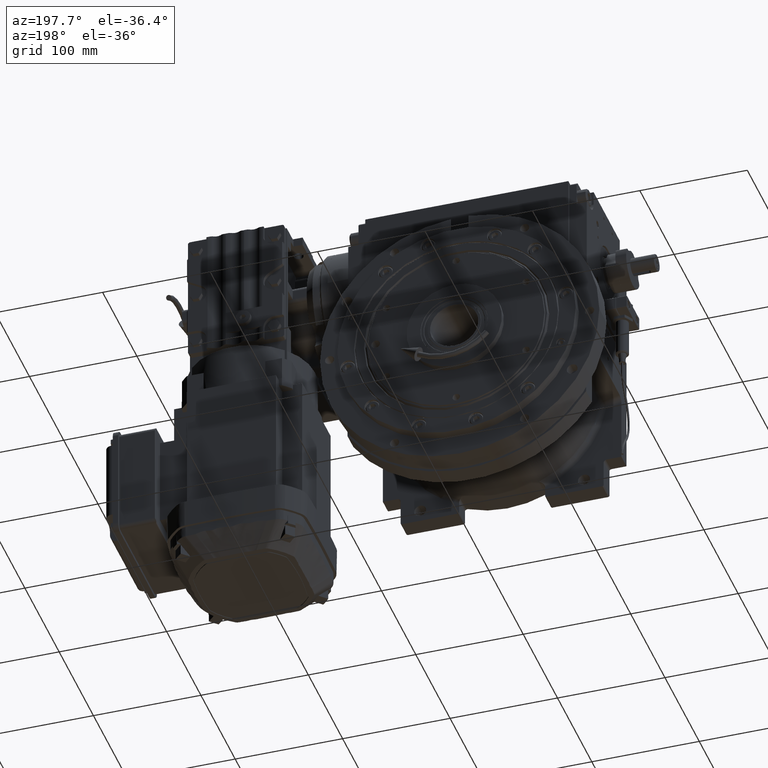
[diagram: clean part render]
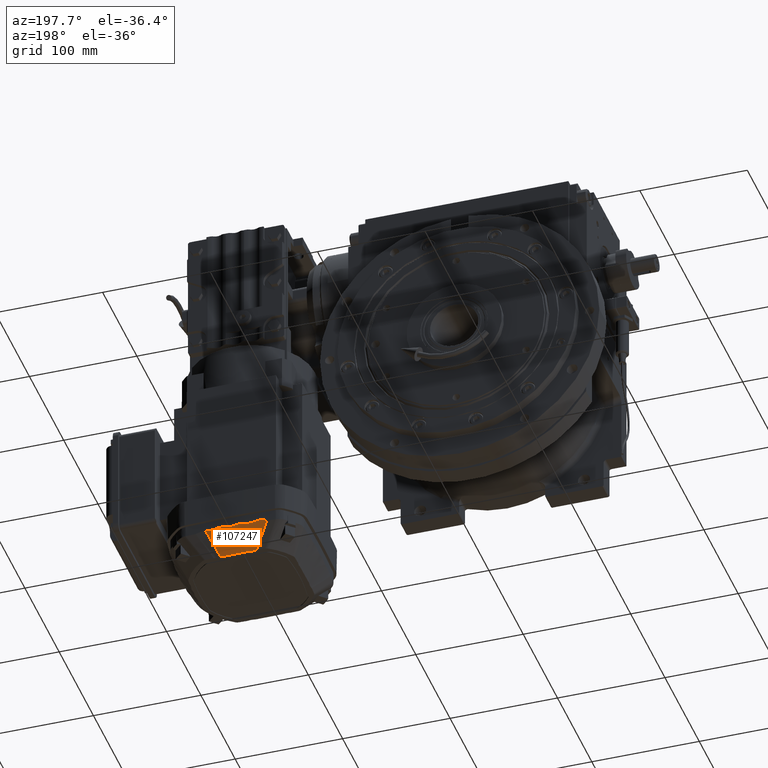
[diagram: same view with one face highlighted and labeled with its STEP entity id]
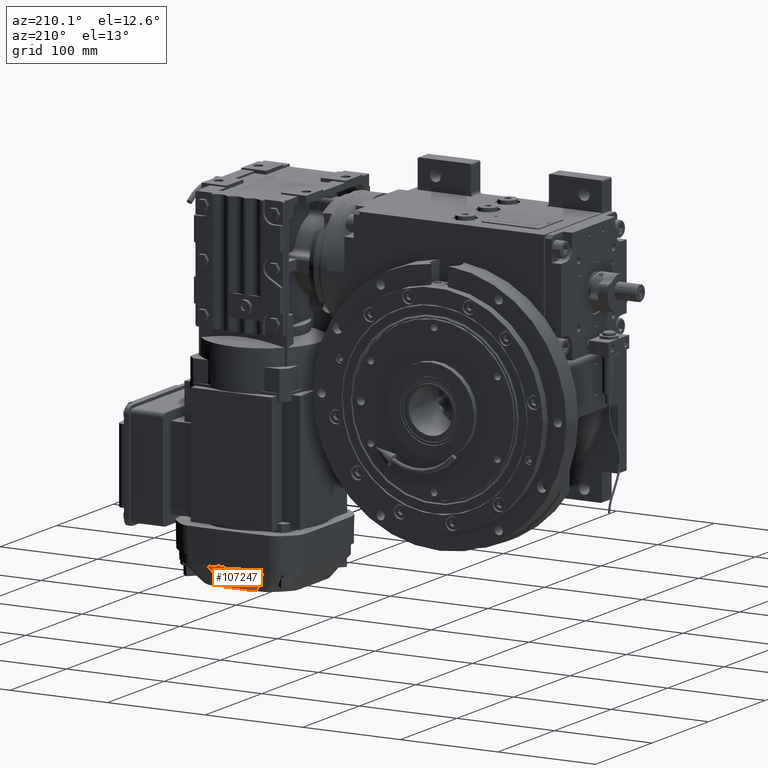
[diagram: same view with one face highlighted and labeled with its STEP entity id]
A machine part, auxiliary view. The second image highlights one B-rep face of the part: STEP entity #107247.
A second angle (auxiliary view) of the same face is appended — the face is thin or edge-on in the first view.
In plain terms, the highlighted face is a freeform B-spline surface patch.
Its self-contained STEP definition (entity closure, byte-faithful):
#137 = CARTESIAN_POINT ( 'NONE',  ( 294.2000000000000455, 4.042271573198363832, 79.03012164066888090 ) ) ;
#146 = CARTESIAN_POINT ( 'NONE',  ( 294.1999999999998749, -7.654721202475024633, 79.14137276784251185 ) ) ;
#392 = CARTESIAN_POINT ( 'NONE',  ( 272.9864447449916156, 4.472013099584639662, 92.88866395907062667 ) ) ;
#683 = CARTESIAN_POINT ( 'NONE',  ( 272.1332323687790335, 2.427420600846913246, 93.80416744614481672 ) ) ;
#795 = CARTESIAN_POINT ( 'NONE',  ( 272.6861816365289997, -23.23345260665990608, 92.65026365608808590 ) ) ;
#941 = CARTESIAN_POINT ( 'NONE',  ( 272.9729126526301570, -4.515970317776106135, 92.88871495776871257 ) ) ;
#1215 = CARTESIAN_POINT ( 'NONE',  ( 272.1332323687790335, 5.549561682784670325, 93.22447909469572380 ) ) ;
#1346 = CARTESIAN_POINT ( 'NONE',  ( 294.1999999999998749, 8.088748495449269882, 79.21306337875837755 ) ) ;
#1472 = CARTESIAN_POINT ( 'NONE',  ( 273.5107546190450307, 16.92407182259180942, 92.75463705075986809 ) ) ;
#1752 = CARTESIAN_POINT ( 'NONE',  ( 294.2085674342520178, 8.450359551763931165, 79.27180816523167550 ) ) ;
#1879 = CARTESIAN_POINT ( 'NONE',  ( 294.2000000000000455, -13.48557249642889921, 79.11230852323078011 ) ) ;
#1899 = CARTESIAN_POINT ( 'NONE',  ( 294.1999999999998749, 7.514726233833132873, 79.12046156952517606 ) ) ;
#2030 = CARTESIAN_POINT ( 'NONE',  ( 272.8221223847058354, 13.58070999836195902, 92.81446218001271120 ) ) ;
#2292 = CARTESIAN_POINT ( 'NONE',  ( 294.1999999999998749, 15.77556874404180043, 78.80817336909441906 ) ) ;
#2297 = CARTESIAN_POINT ( 'NONE',  ( 272.1332323687790335, -20.92694197758701691, 93.51348195597992685 ) ) ;
#2438 = CARTESIAN_POINT ( 'NONE',  ( 294.1999999999998181, 14.50663765343563405, 78.93656120219068839 ) ) ;
#2569 = CARTESIAN_POINT ( 'NONE',  ( 273.3348974280748962, 20.54664573458091326, 92.69425184331612400 ) ) ;
#2701 = CARTESIAN_POINT ( 'NONE',  ( 273.5283175825634316, -18.96493129866630056, 92.72027512995094867 ) ) ;
#2843 = CARTESIAN_POINT ( 'NONE',  ( 294.2085674342520178, -3.171611850730560178, 79.15119529126738485 ) ) ;
#2928 = CARTESIAN_POINT ( 'NONE',  ( 282.1563099950831770, 28.25688250156779802, 87.11911449206340308 ) ) ;
#2971 = CARTESIAN_POINT ( 'NONE',  ( 294.1999999999998181, 8.069608559417405402, 79.20980514027270658 ) ) ;
#3098 = CARTESIAN_POINT ( 'NONE',  ( 272.4500909073655066, 12.25765361969031808, 92.83698638397257241 ) ) ;
#3230 = CARTESIAN_POINT ( 'NONE',  ( 273.5706522435484658, -17.81862878763168112, 92.73935688281187595 ) ) ;
#3379 = CARTESIAN_POINT ( 'NONE',  ( 272.1332323687790335, -4.020819647667373431, 93.55034035460472808 ) ) ;
#3471 = CARTESIAN_POINT ( 'NONE',  ( 281.3211978232433239, 28.83450799285018107, 87.66740222392802195 ) ) ;
#3525 = CARTESIAN_POINT ( 'NONE',  ( 294.1999999999998749, 13.01195924853526620, 79.20464449064861867 ) ) ;
#3652 = CARTESIAN_POINT ( 'NONE',  ( 272.7564460530918495, 13.38420569457203868, 92.81809517060717951 ) ) ;
#3929 = CARTESIAN_POINT ( 'NONE',  ( 294.1999999999998181, 18.91921576957825124, 78.98490014633618728 ) ) ;
#3935 = CARTESIAN_POINT ( 'NONE',  ( 272.1999999999999886, -3.053113317719180486E-13, 93.88867097485892543 ) ) ;
#4079 = CARTESIAN_POINT ( 'NONE',  ( 294.1999999999997044, 1.897823041024368163, 79.37595973958660522 ) ) ;
#4334 = CARTESIAN_POINT ( 'NONE',  ( 273.3674705479090790, -15.70763305269841048, 92.77574677514928680 ) ) ;
#4475 = CARTESIAN_POINT ( 'NONE',  ( 272.1134657902509844, -5.551690933913389081, 93.23708051925503071 ) ) ;
#4618 = CARTESIAN_POINT ( 'NONE',  ( 294.1999999999998749, -2.474850293357582220, 79.28818874268378636 ) ) ;
#4750 = CARTESIAN_POINT ( 'NONE',  ( 273.5490819248387311, 32.98085290287413329, 92.37857526005275588 ) ) ;
#4879 = CARTESIAN_POINT ( 'NONE',  ( 272.8063964411022653, -13.53471402068317531, 92.81532127666181964 ) ) ;
#5031 = CARTESIAN_POINT ( 'NONE',  ( 294.2085674342679908, -13.48169060430351429, 79.10691731192837040 ) ) ;
#5164 = CARTESIAN_POINT ( 'NONE',  ( 294.1999999999997613, 1.928887730603785267, 79.37187131717024613 ) ) ;
#5300 = CARTESIAN_POINT ( 'NONE',  ( 273.0500708358439965, 32.08382223333340733, 92.41487471579898738 ) ) ;
#5442 = CARTESIAN_POINT ( 'NONE',  ( 272.7711205913665253, -5.161578031323751148, 92.88930910730908863 ) ) ;
#5713 = CARTESIAN_POINT ( 'NONE',  ( 294.1999999999998181, -2.786206351159621786, 79.23084906326218402 ) ) ;
#5985 = CARTESIAN_POINT ( 'NONE',  ( 272.9045035345205292, -13.82295712414284594, 92.80991258688180778 ) ) ;
#6268 = CARTESIAN_POINT ( 'NONE',  ( 294.1999999999998181, 2.755536474407235037, 79.23672295411238053 ) ) ;
#6500 = CARTESIAN_POINT ( 'NONE',  ( 272.7083212125539262, -13.23176137312067446, 92.82083404450145281 ) ) ;
#6777 = CARTESIAN_POINT ( 'NONE',  ( 272.1134657902499612, 35.04206799919010251, 93.66658453390532202 ) ) ;
#7036 = CARTESIAN_POINT ( 'NONE',  ( 272.6468268944746569, -5.605127417246733579, 92.88925597046497273 ) ) ;
#7323 = CARTESIAN_POINT ( 'NONE',  ( 294.2085674342509947, 16.71394224721259292, 78.67772440079527030 ) ) ;
#7328 = CARTESIAN_POINT ( 'NONE',  ( 294.1999999999998749, -7.678052069073038943, 79.14491440079206086 ) ) ;
#7585 = CARTESIAN_POINT ( 'NONE',  ( 272.8101575084506862, 5.033209761041865349, 92.88924101541252298 ) ) ;
#7594 = CARTESIAN_POINT ( 'NONE',  ( 272.1332323687790335, -23.57088340814581073, 92.97706572810342607 ) ) ;
#7867 = CARTESIAN_POINT ( 'NONE',  ( 272.5694679930929283, 30.63497385352158631, 92.46539104102365059 ) ) ;
#7871 = CARTESIAN_POINT ( 'NONE',  ( 294.1999999999999318, -8.328242302650213702, 79.25328463083194208 ) ) ;
#8080 = B_SPLINE_SURFACE_WITH_KNOTS ( 'NONE', 3, 1, ( 
 ( #73147, #13993, #47731, #32753, #39442 ),
 ( #98054, #15082, #99665, #22830, #89740 ),
 ( #90828, #90297, #100199, #91354, #106343 ),
 ( #30584, #48816, #82522, #56582, #6777 ),
 ( #40502, #107965, #24442, #14538, #48280 ),
 ( #107425, #23912, #66463, #49349, #57649 ),
 ( #7323, #91905, #108508, #16156, #49893 ),
 ( #83604, #67009, #52611, #85251, #94637 ),
 ( #86328, #10027, #68107, #43764, #52085 ),
 ( #42122, #101843, #25548, #94090, #26078 ),
 ( #84143, #100758, #85798, #27185, #17229 ),
 ( #77474, #102382, #34399, #50442, #68631 ),
 ( #1752, #101308, #26628, #59297, #102939 ),
 ( #8402, #10563, #50977, #84695, #75293 ),
 ( #109043, #18342, #59826, #93535, #75840 ),
 ( #17786, #33849, #51531, #35490, #33288 ),
 ( #60932, #137, #8956, #42677, #69184 ),
 ( #9497, #76942, #43223, #1215, #18879 ),
 ( #34936, #67559, #25002, #58749, #92459 ),
 ( #16703, #92993, #76397, #683, #60380 ),
 ( #87426, #97364, #3935, #95164, #53710 ),
 ( #53159, #61458, #37104, #21058, #96253 ),
 ( #45393, #71347, #105654, #3379, #79110 ),
 ( #2843, #36564, #27711, #95709, #4475 ),
 ( #45938, #105109, #86878, #29343, #11669 ),
 ( #11125, #19423, #70803, #104557, #80211 ),
 ( #28798, #70258, #62549, #20511, #37653 ),
 ( #21621, #38192, #44845, #29889, #54253 ),
 ( #46502, #87966, #36030, #55360, #12213 ),
 ( #79663, #89077, #88520, #63075, #12775 ),
 ( #96796, #78572, #54803, #104008, #71888 ),
 ( #63639, #44307, #78021, #2297, #69733 ),
 ( #103475, #28262, #62008, #19970, #99411 ),
 ( #5031, #59022, #40778, #41845, #74491 ),
 ( #25271, #23647, #25812, #99940, #24168 ),
 ( #92730, #41312, #50167, #82784, #16973 ),
 ( #57395, #108240, #8678, #7594, #75035 ) ),
 .UNSPECIFIED., .F., .F., .F.,
 ( 4, 3, 1, 1, 2, 1, 1, 1, 2, 1, 1, 1, 2, 1, 1, 1, 2, 1, 1, 1, 2, 1, 1, 1, 3, 4 ),
 ( 2, 1, 1, 1, 2 ),
 ( 0.6805502385023199929, 0.6809611108545989833, 0.6927281877383760778, 0.7214109803726640457, 0.7500937730069520137, 0.7626333437114090064, 0.7751729144158659990, 0.7877124851203239908, 0.8002520558247809834, 0.8123973446270900123, 0.8245426334293989301, 0.8366879222317079590, 0.8488332110340169878, 0.8616383927734100334, 0.8744435745128019688, 0.8872487562521940152, 0.9000539379915860616, 0.9121992267938949794, 0.9243445155962040083, 0.9364898043985130371, 0.9486350932008230652, 0.9614763199006169936, 0.9743175466004110330, 0.9871587733002059606, 1.000000000000000000, 1.000423092073609910 ),
 ( -0.0003894288296208949711, 0.000000000000000000, 1.000000000000000000, 1.003034892328240169, 1.003933373170429855 ),
 .UNSPECIFIED. ) ;
#8129 = CARTESIAN_POINT ( 'NONE',  ( 272.4492126878113822, 6.453634863030053737, 92.88789487726184291 ) ) ;
#8402 = CARTESIAN_POINT ( 'NONE',  ( 294.2085674342520178, 7.563651562195433442, 79.11599383485467740 ) ) ;
#8410 = CARTESIAN_POINT ( 'NONE',  ( 294.1999999999998181, -7.611983926291019387, 79.13499013187828268 ) ) ;
#8669 = CARTESIAN_POINT ( 'NONE',  ( 273.1854894294760356, 3.766176349005790680, 92.88791521495306824 ) ) ;
#8678 = CARTESIAN_POINT ( 'NONE',  ( 272.1999999550210418, -23.54048822766399596, 92.93509004940752050 ) ) ;
#8956 = CARTESIAN_POINT ( 'NONE',  ( 272.1999999999999886, 7.042099094051068597, 92.93927445551591404 ) ) ;
#9211 = CARTESIAN_POINT ( 'NONE',  ( 272.9029719729518320, -4.736405116615396871, 92.88898342014674370 ) ) ;
#9497 = CARTESIAN_POINT ( 'NONE',  ( 294.2085674342520178, 3.171611850730698734, 79.15119529126747011 ) ) ;
#9630 = CARTESIAN_POINT ( 'NONE',  ( 294.1999999999998181, 7.540547435993441461, 79.12414069086288748 ) ) ;
#9751 = CARTESIAN_POINT ( 'NONE',  ( 272.8676040196933172, -4.847102259583127015, 92.88910009552432712 ) ) ;
#10027 = CARTESIAN_POINT ( 'NONE',  ( 294.2000000000000455, 13.02667654806360886, 79.20784135885868693 ) ) ;
#10164 = CARTESIAN_POINT ( 'NONE',  ( 294.1999999999998749, 10.17925738065848940, 79.41523323499060893 ) ) ;
#10289 = CARTESIAN_POINT ( 'NONE',  ( 272.8240335415420645, 13.58628418412742356, 92.81435782997196782 ) ) ;
#10557 = CARTESIAN_POINT ( 'NONE',  ( 294.1999999999997613, 17.96376363084028327, 78.85302849691363747 ) ) ;
#10563 = CARTESIAN_POINT ( 'NONE',  ( 294.2000000000000455, 7.565793259781350422, 79.12143154825248814 ) ) ;
#10718 = CARTESIAN_POINT ( 'NONE',  ( 294.1999999999997613, 12.52439786014717527, 79.27905608593896147 ) ) ;
#10853 = CARTESIAN_POINT ( 'NONE',  ( 272.9734171518618382, 14.03752947659097394, 92.80590926000769514 ) ) ;
#11125 = CARTESIAN_POINT ( 'NONE',  ( 294.2085674342520178, -5.369592940239032330, 78.95338938446957400 ) ) ;
#11218 = CARTESIAN_POINT ( 'NONE',  ( 294.2000000000000455, 19.86339649766369320, 79.21271889334197169 ) ) ;
#11266 = CARTESIAN_POINT ( 'NONE',  ( 294.1999999999998749, 8.157685457356182113, 79.22461546049308367 ) ) ;
#11395 = CARTESIAN_POINT ( 'NONE',  ( 273.5094922625851268, 18.98757389481316338, 92.71993591392191547 ) ) ;
#11669 = CARTESIAN_POINT ( 'NONE',  ( 272.1134657902509844, -7.048821606298050213, 92.99494308383562213 ) ) ;
#11803 = CARTESIAN_POINT ( 'NONE',  ( 294.1999999999998749, 8.072335598173907556, 79.21027022588398836 ) ) ;
#11925 = CARTESIAN_POINT ( 'NONE',  ( 272.3983222811790483, 12.01312878317749089, 92.84067169543894238 ) ) ;
#12213 = CARTESIAN_POINT ( 'NONE',  ( 272.1134657902509844, -14.61902526113659206, 93.42430328685543373 ) ) ;
#12357 = CARTESIAN_POINT ( 'NONE',  ( 294.1999999999998749, -2.423440125754460883, 79.29696723239585765 ) ) ;
#12486 = CARTESIAN_POINT ( 'NONE',  ( 272.9204507341021895, 13.87105776811388935, 92.80901767948076042 ) ) ;
#12775 = CARTESIAN_POINT ( 'NONE',  ( 272.1134657902509844, -16.18531887436999739, 93.63012690649833303 ) ) ;
#12922 = CARTESIAN_POINT ( 'NONE',  ( 294.1999999999998749, -2.890678883007550493, 79.21128122242015479 ) ) ;
#13047 = CARTESIAN_POINT ( 'NONE',  ( 272.3855916750437132, 24.70503968709191156, 92.62244108892429040 ) ) ;
#13180 = CARTESIAN_POINT ( 'NONE',  ( 272.7456976598853657, -5.248781249097816293, 92.88932825584176101 ) ) ;
#13468 = CARTESIAN_POINT ( 'NONE',  ( 294.1999999999997613, -2.432520645761570233, 79.29542337830893928 ) ) ;
#13594 = CARTESIAN_POINT ( 'NONE',  ( 272.6389815998787753, 23.47270170019652724, 92.64588188771672606 ) ) ;
#13717 = CARTESIAN_POINT ( 'NONE',  ( 272.2110434613753682, -10.78426249478648913, 92.85708985589540987 ) ) ;
#13993 = CARTESIAN_POINT ( 'NONE',  ( 294.2000000000000455, 21.39138860004599607, 79.67148213423078573 ) ) ;
#14003 = CARTESIAN_POINT ( 'NONE',  ( 294.1999999999998749, -0.8074027082866404026, 79.47862695059956195 ) ) ;
#14275 = CARTESIAN_POINT ( 'NONE',  ( 273.2035471317594215, -14.85695677546180526, 92.79086824470252282 ) ) ;
#14538 = CARTESIAN_POINT ( 'NONE',  ( 272.1332323687780104, 34.38281754031269344, 93.44716627321191993 ) ) ;
#14548 = CARTESIAN_POINT ( 'NONE',  ( 294.1999999999998181, -3.742993609862737880, 79.07898052151148249 ) ) ;
#14684 = CARTESIAN_POINT ( 'NONE',  ( 274.1999999999999886, 33.74818594923109316, 92.34292160745168587 ) ) ;
#14807 = CARTESIAN_POINT ( 'NONE',  ( 272.1751110129089284, -10.34098676774586245, 92.86208134510216894 ) ) ;
#15082 = CARTESIAN_POINT ( 'NONE',  ( 294.2000000000000455, 21.37625016754779494, 79.66607179557477991 ) ) ;
#15087 = CARTESIAN_POINT ( 'NONE',  ( 294.1999999999997044, -8.220738421408263719, 79.23610135866236703 ) ) ;
#15329 = CARTESIAN_POINT ( 'NONE',  ( 272.9090929208932153, -13.83689767350250932, 92.80965180134111847 ) ) ;
#15607 = CARTESIAN_POINT ( 'NONE',  ( 272.1513023494154595, 27.87627931282457894, 92.54835899702736413 ) ) ;
#15612 = CARTESIAN_POINT ( 'NONE',  ( 294.1999999999998181, -8.655224611576409544, 79.29765397690721329 ) ) ;
#15865 = CARTESIAN_POINT ( 'NONE',  ( 272.9694157864985300, 4.527469365016717262, 92.88872770149362168 ) ) ;
#16156 = CARTESIAN_POINT ( 'NONE',  ( 272.1332323687780104, 28.10689666798668540, 92.37503976411181839 ) ) ;
#16160 = CARTESIAN_POINT ( 'NONE',  ( 272.8457525134868433, 22.69029516189196016, 92.65917201666543690 ) ) ;
#16416 = CARTESIAN_POINT ( 'NONE',  ( 273.1775851175692083, 3.796693011536346418, 92.88794498278210199 ) ) ;
#16703 = CARTESIAN_POINT ( 'NONE',  ( 294.2085674342520178, 1.375250124318216915, 79.45109357225408075 ) ) ;
#16712 = CARTESIAN_POINT ( 'NONE',  ( 294.1999999999998749, -11.80761664582096415, 79.38569897440457623 ) ) ;
#16964 = CARTESIAN_POINT ( 'NONE',  ( 273.2004166301119881, 3.707843589908453641, 92.88785899139266178 ) ) ;
#16973 = CARTESIAN_POINT ( 'NONE',  ( 272.1134658031679692, -23.55090447734789549, 92.99654685173241830 ) ) ;
#17229 = CARTESIAN_POINT ( 'NONE',  ( 272.1134657902499612, 18.47256472452030351, 93.70019808920152116 ) ) ;
#17500 = CARTESIAN_POINT ( 'NONE',  ( 272.8451368593794086, -4.918107714066541014, 92.88916784328942811 ) ) ;
#17786 = CARTESIAN_POINT ( 'NONE',  ( 294.2085674342520178, 5.360857159701470920, 78.95361613341488294 ) ) ;
#18048 = CARTESIAN_POINT ( 'NONE',  ( 273.5198518167320003, 2.191630068435208134, 92.88665347331668443 ) ) ;
#18342 = CARTESIAN_POINT ( 'NONE',  ( 294.2000000000000455, 6.687071173626907061, 79.00814207277018397 ) ) ;
#18473 = CARTESIAN_POINT ( 'NONE',  ( 294.1999999999998181, 6.378168939399669668, 79.00608035476244595 ) ) ;
#18506 = ORIENTED_EDGE ( 'NONE', *, *, #44134, .T. ) ;
#18597 = CARTESIAN_POINT ( 'NONE',  ( 273.0187943497841729, 14.18645921389949116, 92.80314527931571433 ) ) ;
#18879 = CARTESIAN_POINT ( 'NONE',  ( 272.1134657902499612, 5.551690933912750481, 93.23708051925513018 ) ) ;
#19017 = CARTESIAN_POINT ( 'NONE',  ( 294.1999999999998181, 5.016147722234022943, 78.96836669881786008 ) ) ;
#19140 = CARTESIAN_POINT ( 'NONE',  ( 273.5364914266068581, 18.55320657388108074, 92.72714567045932199 ) ) ;
#19423 = CARTESIAN_POINT ( 'NONE',  ( 294.2000000000000455, -5.371120310865507008, 78.95877944694048267 ) ) ;
#19568 = CARTESIAN_POINT ( 'NONE',  ( 294.1999999999998181, 12.51022942289191953, 79.28100304626194372 ) ) ;
#19697 = CARTESIAN_POINT ( 'NONE',  ( 272.2249792472169361, 7.748707512399505504, 92.88339454350844449 ) ) ;
#19970 = CARTESIAN_POINT ( 'NONE',  ( 272.1332323687790335, -22.60492934187849201, 93.21220177001642071 ) ) ;
#20115 = CARTESIAN_POINT ( 'NONE',  ( 294.1999999999999318, 14.00400612893889907, 79.01396318615687164 ) ) ;
#20245 = CARTESIAN_POINT ( 'NONE',  ( 272.9833070246388615, 22.17361177475777012, 92.66763564914151630 ) ) ;
#20375 = CARTESIAN_POINT ( 'NONE',  ( 272.8805887212734547, -22.59906695126188225, 92.66068813180147856 ) ) ;
#20511 = CARTESIAN_POINT ( 'NONE',  ( 272.1332323687790335, -11.56787618729160272, 92.92259576206551230 ) ) ;
#20641 = CARTESIAN_POINT ( 'NONE',  ( 294.1999999999998181, 14.08721890195989168, 79.00025958584750185 ) ) ;
#20772 = CARTESIAN_POINT ( 'NONE',  ( 272.5371267940173539, 12.62387396547453022, 92.83119631918484060 ) ) ;
#21058 = CARTESIAN_POINT ( 'NONE',  ( 272.1332323687790335, -2.427420600847524312, 93.80416744614473146 ) ) ;
#21200 = CARTESIAN_POINT ( 'NONE',  ( 294.1999999999998181, -1.149747603902764537, 79.45456150890854019 ) ) ;
#21331 = CARTESIAN_POINT ( 'NONE',  ( 272.8135992364842650, 22.80533531481180631, 92.65727869115906401 ) ) ;
#21468 = CARTESIAN_POINT ( 'NONE',  ( 272.7122392339903740, -5.366224054098454488, 92.88933081775866185 ) ) ;
#21621 = CARTESIAN_POINT ( 'NONE',  ( 294.2085674342520178, -7.568925917933011505, 79.11692073040477169 ) ) ;
#21760 = CARTESIAN_POINT ( 'NONE',  ( 294.1999999999998181, -2.443680783144995150, 79.29351974763413580 ) ) ;
#21887 = CARTESIAN_POINT ( 'NONE',  ( 272.8728953248240714, 22.59192994915112962, 92.66078494472235150 ) ) ;
#21971 = VERTEX_POINT ( 'NONE', #60882 ) ;
#22022 = CARTESIAN_POINT ( 'NONE',  ( 272.1817087496217482, -8.359907811826380097, 92.87933548921881766 ) ) ;
#22302 = CARTESIAN_POINT ( 'NONE',  ( 294.1999999999998181, -2.542655819447246390, 79.27604131868739046 ) ) ;
#22432 = CARTESIAN_POINT ( 'NONE',  ( 272.4557031826499269, 24.31863632594155078, 92.63011078095141215 ) ) ;
#22556 = CARTESIAN_POINT ( 'NONE',  ( 272.7091746323962980, -13.23454723985157777, 92.82078458341470650 ) ) ;
#22830 = CARTESIAN_POINT ( 'NONE',  ( 272.1332323687780104, 35.07499278849279989, 93.66849215383942351 ) ) ;
#22839 = CARTESIAN_POINT ( 'NONE',  ( 294.1999999999998181, -2.359819953419661331, 79.30763342357123236 ) ) ;
#23103 = CARTESIAN_POINT ( 'NONE',  ( 272.1926602942459112, -8.226386558930053994, 92.88017670929261271 ) ) ;
#23377 = CARTESIAN_POINT ( 'NONE',  ( 294.1999999999998749, -1.463804003341016902, 79.42757225246033670 ) ) ;
#23639 = CARTESIAN_POINT ( 'NONE',  ( 272.1845193407635861, -10.47437614237182757, 92.86062132544473968 ) ) ;
#23647 = CARTESIAN_POINT ( 'NONE',  ( 294.2000000000000455, -13.49882133087129610, 79.10955038442487819 ) ) ;
#23912 = CARTESIAN_POINT ( 'NONE',  ( 294.2000000000000455, 19.39800149506490357, 79.03857705780046672 ) ) ;
#24160 = CARTESIAN_POINT ( 'NONE',  ( 272.8552425175383860, 4.886379793637100732, 92.88913833804849673 ) ) ;
#24168 = CARTESIAN_POINT ( 'NONE',  ( 272.1134658027680189, -23.52192704366951048, 93.00360106228933432 ) ) ;
#24442 = CARTESIAN_POINT ( 'NONE',  ( 272.1999999999999886, 34.34206002856901563, 93.40496711496132320 ) ) ;
#24449 = CARTESIAN_POINT ( 'NONE',  ( 294.1999999999998181, -9.663115515366744290, 79.39477253971621451 ) ) ;
#24706 = CARTESIAN_POINT ( 'NONE',  ( 272.5333042626813835, 6.065607138889033578, 92.88871509803823301 ) ) ;
#25002 = CARTESIAN_POINT ( 'NONE',  ( 272.1999999999999886, 4.015577047402713262, 93.50730277585962824 ) ) ;
#25007 = CARTESIAN_POINT ( 'NONE',  ( 272.8805367615723867, 22.56406937071252372, 92.66124134498322462 ) ) ;
#25011 = CARTESIAN_POINT ( 'NONE',  ( 294.1999999999998181, -10.84241080475193542, 79.41423013097444539 ) ) ;
#25260 = CARTESIAN_POINT ( 'NONE',  ( 272.9683094814623701, -4.530724275751301100, 92.88873278140130196 ) ) ;
#25271 = CARTESIAN_POINT ( 'NONE',  ( 294.2085674342679908, -13.49493333757739677, 79.10416083958057243 ) ) ;
#25548 = CARTESIAN_POINT ( 'NONE',  ( 272.1999999999999886, 20.75383767274349722, 93.48368121026203426 ) ) ;
#25555 = CARTESIAN_POINT ( 'NONE',  ( 294.1999999999998181, -9.193351106384943350, 79.35727432852506524 ) ) ;
#25804 = CARTESIAN_POINT ( 'NONE',  ( 273.5504190751427700, -1.882898473907198333, 92.88653258403770963 ) ) ;
#25812 = CARTESIAN_POINT ( 'NONE',  ( 272.1999999577180347, -23.48265662547610688, 92.94916480010071780 ) ) ;
#26078 = CARTESIAN_POINT ( 'NONE',  ( 272.1134657902499612, 20.78784654430248935, 93.53926262389572344 ) ) ;
#26342 = CARTESIAN_POINT ( 'NONE',  ( 272.9735877856370507, -4.513793810693491615, 92.88871238454957791 ) ) ;
#26628 = CARTESIAN_POINT ( 'NONE',  ( 272.1999999999999886, 14.56602687083150016, 93.36351805800443060 ) ) ;
#26760 = CARTESIAN_POINT ( 'NONE',  ( 294.1999999999998181, 6.703144539026530069, 79.02908304417910301 ) ) ;
#26894 = CARTESIAN_POINT ( 'NONE',  ( 273.4285359588759547, 19.86981807781611664, 92.70535931185787604 ) ) ;
#27185 = CARTESIAN_POINT ( 'NONE',  ( 272.1332323687790335, 18.46563570502379648, 93.68743379508973135 ) ) ;
#27275 = CARTESIAN_POINT ( 'NONE',  ( 290.8993888718870267, 22.19157981156669379, 81.37909939351030175 ) ) ;
#27323 = CARTESIAN_POINT ( 'NONE',  ( 294.1999999999998749, 6.370328234519289090, 79.00560038541854624 ) ) ;
#27439 = CARTESIAN_POINT ( 'NONE',  ( 272.5688633771717946, 12.74636998779924113, 92.82918556261256526 ) ) ;
#27711 = CARTESIAN_POINT ( 'NONE',  ( 272.1999999999999886, -5.542369489462823040, 93.18191395037180769 ) ) ;
#27851 = CARTESIAN_POINT ( 'NONE',  ( 294.1999999999999318, 7.781718370119308226, 79.16126010405844227 ) ) ;
#27980 = CARTESIAN_POINT ( 'NONE',  ( 272.1463772261540726, 9.061857103058745366, 92.87422687988123471 ) ) ;
#28262 = CARTESIAN_POINT ( 'NONE',  ( 294.2000000000000455, -13.08345840071359412, 79.19602052798128966 ) ) ;
#28358 = CARTESIAN_POINT ( 'NONE',  ( 275.6896682816176281, 32.72180126841525549, 91.36484638164097305 ) ) ;
#28406 = CARTESIAN_POINT ( 'NONE',  ( 294.1999999999998749, 14.19013379608836622, 78.98364716821174625 ) ) ;
#28528 = CARTESIAN_POINT ( 'NONE',  ( 272.1432308842116754, 9.465250175957137913, 92.87076676071879433 ) ) ;
#28798 = CARTESIAN_POINT ( 'NONE',  ( 294.2085674342520178, -6.695907340950296494, 79.00369001402258107 ) ) ;
#28899 = CARTESIAN_POINT ( 'NONE',  ( 282.4265614585629578, 28.06987894852067811, 86.94168372378561571 ) ) ;
#28947 = CARTESIAN_POINT ( 'NONE',  ( 294.1999999999999318, 8.591122200933016373, 79.28961551963300280 ) ) ;
#29077 = CARTESIAN_POINT ( 'NONE',  ( 272.4773191545417035, 12.37760940135099652, 92.83512611128446679 ) ) ;
#29343 = CARTESIAN_POINT ( 'NONE',  ( 272.1332323687790335, -7.046133205363042329, 92.98244471667283051 ) ) ;
#29480 = CARTESIAN_POINT ( 'NONE',  ( 294.1999999999998749, -2.438573556619582750, 79.29439222677571308 ) ) ;
#29609 = CARTESIAN_POINT ( 'NONE',  ( 272.1440147399064813, 27.04610760575228667, 92.56991653531058262 ) ) ;
#29745 = CARTESIAN_POINT ( 'NONE',  ( 273.3006227759320268, -15.31857315405031805, 92.78261429798213555 ) ) ;
#29889 = CARTESIAN_POINT ( 'NONE',  ( 272.1332323687790335, -13.07207314204231174, 93.12525624954572834 ) ) ;
#30028 = CARTESIAN_POINT ( 'NONE',  ( 294.1999999999998749, 3.373649570035239353, 79.13214243053546681 ) ) ;
#30163 = CARTESIAN_POINT ( 'NONE',  ( 272.1529314146698653, 27.92183100406399276, 92.54713896773746740 ) ) ;
#30303 = CARTESIAN_POINT ( 'NONE',  ( 272.7115678918532353, -13.24235344480695176, 92.82064593179360656 ) ) ;
#30584 = CARTESIAN_POINT ( 'NONE',  ( 294.2085674342509947, 21.34066054547939473, 79.64981607912638140 ) ) ;
#30590 = CARTESIAN_POINT ( 'NONE',  ( 294.1999999999998181, 2.727639887760653359, 79.24203150579441512 ) ) ;
#30721 = CARTESIAN_POINT ( 'NONE',  ( 272.7233577895963208, 23.14216463344560282, 92.65159947731525847 ) ) ;
#30859 = CARTESIAN_POINT ( 'NONE',  ( 272.5484638852899479, -6.004496103533049300, 92.88878443721996803 ) ) ;
#31139 = CARTESIAN_POINT ( 'NONE',  ( 294.1999999999998749, -7.270027500182382418, 79.08832258951045446 ) ) ;
#31389 = CARTESIAN_POINT ( 'NONE',  ( 272.1605499270289101, -8.670724850861184052, 92.87724323895298539 ) ) ;
#31678 = CARTESIAN_POINT ( 'NONE',  ( 294.1999999999998749, -1.247557674492686397, 79.44641414314372696 ) ) ;
#31937 = CARTESIAN_POINT ( 'NONE',  ( 272.1665088301184028, -10.20617759237748068, 92.86352969794162959 ) ) ;
#32483 = CARTESIAN_POINT ( 'NONE',  ( 272.9939717087817712, 4.447356853948323696, 92.88863576653393750 ) ) ;
#32753 = CARTESIAN_POINT ( 'NONE',  ( 272.1332323687780104, 35.09758391589998183, 93.67571575968332809 ) ) ;
#32756 = CARTESIAN_POINT ( 'NONE',  ( 272.2813710338542137, 25.32147341800916251, 92.60994695542103727 ) ) ;
#33007 = CARTESIAN_POINT ( 'NONE',  ( 272.7341877473901377, 5.285012954223644144, 92.88937650088068665 ) ) ;
#33288 = CARTESIAN_POINT ( 'NONE',  ( 272.1134657902499612, 9.325156171277825479, 92.85364285036432364 ) ) ;
#33291 = CARTESIAN_POINT ( 'NONE',  ( 272.1754454844272573, 28.50153530165446725, 92.53155909808731394 ) ) ;
#33295 = CARTESIAN_POINT ( 'NONE',  ( 294.1999999999998749, -8.152504505923880984, 79.22379918945235033 ) ) ;
#33549 = CARTESIAN_POINT ( 'NONE',  ( 272.9514070515666049, 4.585008436836466750, 92.88879764426570773 ) ) ;
#33849 = CARTESIAN_POINT ( 'NONE',  ( 294.2000000000000455, 5.362394327155294960, 78.95900590563289256 ) ) ;
#33862 = CARTESIAN_POINT ( 'NONE',  ( 294.1999999999997613, -8.142842579772150202, 79.22206493709857966 ) ) ;
#34111 = CARTESIAN_POINT ( 'NONE',  ( 272.7938775450676872, -5.084696627360131060, 92.88928209930173807 ) ) ;
#34399 = CARTESIAN_POINT ( 'NONE',  ( 272.1999999999999886, 16.10938985496360232, 93.57034626854793657 ) ) ;
#34665 = CARTESIAN_POINT ( 'NONE',  ( 273.5352362106257829, -1.996960819841638868, 92.88659019165035602 ) ) ;
#34936 = CARTESIAN_POINT ( 'NONE',  ( 294.2085674342520178, 2.287462400660772666, 79.32085588989957614 ) ) ;
#35076 = CARTESIAN_POINT ( 'NONE',  ( 294.1999999999998181, 12.07067927707552890, 79.34078047931878075 ) ) ;
#35203 = CARTESIAN_POINT ( 'NONE',  ( 273.4822699762336242, 19.31583433301872077, 92.71450536791243735 ) ) ;
#35490 = CARTESIAN_POINT ( 'NONE',  ( 272.1332323687790335, 9.321609655448897414, 92.84120769735743295 ) ) ;
#35625 = CARTESIAN_POINT ( 'NONE',  ( 294.1999999999998181, 6.408326781981087628, 79.00795576473166193 ) ) ;
#35750 = CARTESIAN_POINT ( 'NONE',  ( 273.0142623377004156, 14.17124635768655061, 92.80342661460645104 ) ) ;
#35887 = CARTESIAN_POINT ( 'NONE',  ( 273.3609260922301587, -20.31600590890913338, 92.69804556152581654 ) ) ;
#36024 = CARTESIAN_POINT ( 'NONE',  ( 294.1999999999998181, 14.92909634386576201, 78.88310640787187822 ) ) ;
#36030 = CARTESIAN_POINT ( 'NONE',  ( 272.1999999999999886, -14.59488663002078646, 93.36887946324681309 ) ) ;
#36167 = CARTESIAN_POINT ( 'NONE',  ( 294.1999999999998181, 12.75393381675232263, 79.24584038277416198 ) ) ;
#36293 = CARTESIAN_POINT ( 'NONE',  ( 272.9892801365952550, 22.14997162930467667, 92.66802259513555384 ) ) ;
#36564 = CARTESIAN_POINT ( 'NONE',  ( 294.2000000000000455, -3.172534732706289162, 79.15665713061588349 ) ) ;
#36696 = CARTESIAN_POINT ( 'NONE',  ( 294.1999999999998181, 13.62796265094799608, 79.08457771790247648 ) ) ;
#36827 = CARTESIAN_POINT ( 'NONE',  ( 273.0169834070568413, 14.18037092778401487, 92.80325784283395762 ) ) ;
#37104 = CARTESIAN_POINT ( 'NONE',  ( 272.1999999999999886, -2.424238274049278274, 93.76075606686282526 ) ) ;
#37249 = CARTESIAN_POINT ( 'NONE',  ( 294.1999999999998181, 7.519580015919713922, 79.12114653201439296 ) ) ;
#37375 = CARTESIAN_POINT ( 'NONE',  ( 273.0181411606131405, 14.18426317348557397, 92.80318588074310071 ) ) ;
#37450 = B_SPLINE_CURVE_WITH_KNOTS ( 'NONE', 1,
 ( #795, #1879 ),
 .UNSPECIFIED., .F., .F.,
 ( 2, 2 ),
 ( -0.9779008328837549557, 1.110223024625156540E-16 ),
 .UNSPECIFIED. ) ;
#37653 = CARTESIAN_POINT ( 'NONE',  ( 272.1134657902509844, -11.57223861959449884, 92.93505895425172980 ) ) ;
#37797 = CARTESIAN_POINT ( 'NONE',  ( 294.1999999999997044, 2.732432921811730697, 79.24111738377106917 ) ) ;
#37929 = CARTESIAN_POINT ( 'NONE',  ( 272.8176342340773317, 22.79096030892359792, 92.65751556695255431 ) ) ;
#38192 = CARTESIAN_POINT ( 'NONE',  ( 294.2000000000000455, -7.571061688551205648, 79.12235736333379066 ) ) ;
#38303 = EDGE_CURVE ( 'NONE', #102691, #21971, #50322, .T. ) ;
#38325 = CARTESIAN_POINT ( 'NONE',  ( 294.1999999999998181, -5.463922079603573678, 78.96224773102544248 ) ) ;
#38596 = CARTESIAN_POINT ( 'NONE',  ( 273.0607901574076095, -14.32760085128149363, 92.80054434399019669 ) ) ;
#38887 = CARTESIAN_POINT ( 'NONE',  ( 294.1999999999998181, 1.344875746440682418, 79.44712570993181089 ) ) ;
#39023 = CARTESIAN_POINT ( 'NONE',  ( 272.7399150208324272, 23.07808544679247120, 92.65269958045638532 ) ) ;
#39160 = CARTESIAN_POINT ( 'NONE',  ( 272.7747759467255264, -5.149183206439814420, 92.88930515073145955 ) ) ;
#39442 = CARTESIAN_POINT ( 'NONE',  ( 272.1134657902499612, 35.10986140894120666, 93.68826022420631716 ) ) ;
#39447 = CARTESIAN_POINT ( 'NONE',  ( 294.1999999999998749, -2.977456132227763508, 79.19584550430830916 ) ) ;
#39702 = CARTESIAN_POINT ( 'NONE',  ( 272.3748667038970552, -11.91590261580272347, 92.84221899201067174 ) ) ;
#39980 = CARTESIAN_POINT ( 'NONE',  ( 294.1999999999997613, 0.5621270786533792974, 79.50560777228716347 ) ) ;
#40229 = CARTESIAN_POINT ( 'NONE',  ( 272.5407567729519087, -6.037148330555690556, 92.88873502383340508 ) ) ;
#40502 = CARTESIAN_POINT ( 'NONE',  ( 294.2085674342509947, 20.90719002858690345, 79.49488818842146998 ) ) ;
#40508 = CARTESIAN_POINT ( 'NONE',  ( 294.1999999999998749, -9.372763086569758428, 79.37244407029993454 ) ) ;
#40771 = CARTESIAN_POINT ( 'NONE',  ( 272.8993391297726134, -13.80731679085510422, 92.81020528479380971 ) ) ;
#40778 = CARTESIAN_POINT ( 'NONE',  ( 272.1999999590670427, -23.45374082438220142, 92.95620217544741593 ) ) ;
#41304 = CARTESIAN_POINT ( 'NONE',  ( 272.8090298891351608, 5.036935736809439845, 92.88924312473781697 ) ) ;
#41312 = CARTESIAN_POINT ( 'NONE',  ( 294.2000000000000455, -13.51207016531361127, 79.10679224561907574 ) ) ;
#41592 = CARTESIAN_POINT ( 'NONE',  ( 272.4138691614437562, 24.54429860299904931, 92.62566178808735629 ) ) ;
#41837 = CARTESIAN_POINT ( 'NONE',  ( 272.3396988753329424, 6.992093675069120273, 92.88653318527154568 ) ) ;
#41845 = CARTESIAN_POINT ( 'NONE',  ( 272.1332323687790335, -23.48399334238340685, 92.99821682302443548 ) ) ;
#41913 = EDGE_LOOP ( 'NONE', ( #42461, #53285, #54993, #18506 ) ) ;
#42122 = CARTESIAN_POINT ( 'NONE',  ( 294.2085674342520178, 12.10423487128509024, 79.34745354272577345 ) ) ;
#42130 = CARTESIAN_POINT ( 'NONE',  ( 294.1999999999998749, -10.89901024863145729, 79.41281773777332376 ) ) ;
#42387 = CARTESIAN_POINT ( 'NONE',  ( 272.9738060402119686, -4.513086056421506065, 92.88871156779471505 ) ) ;
#42440 = CARTESIAN_POINT ( 'NONE',  ( 294.2000000000000455, 19.86339649766369320, 79.21271889334197169 ) ) ;
#42461 = ORIENTED_EDGE ( 'NONE', *, *, #38303, .F. ) ;
#42677 = CARTESIAN_POINT ( 'NONE',  ( 272.1332323687790335, 7.051203247580156486, 92.98148723668603566 ) ) ;
#42939 = CARTESIAN_POINT ( 'NONE',  ( 272.8708840486371514, -4.836809914626955198, 92.88908952177951051 ) ) ;
#43223 = CARTESIAN_POINT ( 'NONE',  ( 272.1999999999999886, 5.542369489462184440, 93.18191395037192137 ) ) ;
#43359 = CARTESIAN_POINT ( 'NONE',  ( 294.1999999999997613, 14.29560268563504266, 78.96728566808262428 ) ) ;
#43476 = CARTESIAN_POINT ( 'NONE',  ( 273.0383397025699992, 4.299636753379956211, 92.88846932160333836 ) ) ;
#43764 = CARTESIAN_POINT ( 'NONE',  ( 272.1332323687790335, 22.28421950629330794, 93.26921710233941099 ) ) ;
#43898 = CARTESIAN_POINT ( 'NONE',  ( 294.1999999999998181, 7.569970932009091769, 79.12842883590640497 ) ) ;
#44023 = CARTESIAN_POINT ( 'NONE',  ( 272.6708518127005618, 13.10952402564990393, 92.82300431097300475 ) ) ;
#44134 = EDGE_CURVE ( 'NONE', #57051, #21971, #37450, .T. ) ;
#44307 = CARTESIAN_POINT ( 'NONE',  ( 294.2000000000000455, -12.23418815432930629, 79.33724383585128237 ) ) ;
#44396 = CARTESIAN_POINT ( 'NONE',  ( 282.4292414941964466, 28.06802426990669730, 86.93992417747372770 ) ) ;
#44445 = CARTESIAN_POINT ( 'NONE',  ( 294.1999999999998749, 9.542127206949993834, 79.39100296027935144 ) ) ;
#44572 = CARTESIAN_POINT ( 'NONE',  ( 272.8253083921257485, 13.58999944296192730, 92.81428825156598350 ) ) ;
#44701 = CARTESIAN_POINT ( 'NONE',  ( 273.3858001866926770, -20.14576018217728404, 92.70084032008645636 ) ) ;
#44845 = CARTESIAN_POINT ( 'NONE',  ( 272.1999999999999886, -13.05542867873849033, 93.08288754360353323 ) ) ;
#44939 = CARTESIAN_POINT ( 'NONE',  ( 282.3628240123154569, 28.11398637716017390, 86.98352982203378758 ) ) ;
#44986 = CARTESIAN_POINT ( 'NONE',  ( 294.1999999999998749, 9.116693291046436443, 79.35601075293891427 ) ) ;
#45118 = CARTESIAN_POINT ( 'NONE',  ( 273.0340777816665536, 21.96943639378779167, 92.67097709721791432 ) ) ;
#45393 = CARTESIAN_POINT ( 'NONE',  ( 294.2085674342520178, -2.287462400660661643, 79.32085588989957614 ) ) ;
#45480 = CARTESIAN_POINT ( 'NONE',  ( 279.1783223138443759, 30.31499986680203662, 89.07431679480160369 ) ) ;
#45529 = CARTESIAN_POINT ( 'NONE',  ( 294.1999999999998181, 7.516663256047607433, 79.12073464860276317 ) ) ;
#45656 = CARTESIAN_POINT ( 'NONE',  ( 272.1468643070930398, 10.01335376282514211, 92.86582377266437049 ) ) ;
#45933 = CARTESIAN_POINT ( 'NONE',  ( 294.2000000000000455, 19.86339649766369320, 79.21271889334197169 ) ) ;
#45938 = CARTESIAN_POINT ( 'NONE',  ( 294.2085674342520178, -4.043724298531170547, 79.02425551895437650 ) ) ;
#46089 = CARTESIAN_POINT ( 'NONE',  ( 294.1999999999998749, 2.115504256870990307, 79.34602301821750814 ) ) ;
#46218 = CARTESIAN_POINT ( 'NONE',  ( 272.6829762317597101, 30.99733763596034208, 92.45292556237576775 ) ) ;
#46349 = CARTESIAN_POINT ( 'NONE',  ( 273.5000291900317393, -16.71125088655206170, 92.75825915605352634 ) ) ;
#46502 = CARTESIAN_POINT ( 'NONE',  ( 294.2085674342520178, -8.455618793380997644, 79.27273225296478643 ) ) ;
#46644 = CARTESIAN_POINT ( 'NONE',  ( 294.1999999999998181, -4.773741909328416355, 78.97947746694993043 ) ) ;
#46781 = CARTESIAN_POINT ( 'NONE',  ( 272.6975432314268915, 31.04103464474570728, 92.45140015499833908 ) ) ;
#46908 = CARTESIAN_POINT ( 'NONE',  ( 272.8590841234190520, -13.68685750110224397, 92.81246212761993775 ) ) ;
#47185 = CARTESIAN_POINT ( 'NONE',  ( 294.1999999999998181, -0.3509194823245477268, 79.49993717028679896 ) ) ;
#47320 = CARTESIAN_POINT ( 'NONE',  ( 272.9649234968195515, 22.24618987234299539, 92.66644764619533703 ) ) ;
#47451 = CARTESIAN_POINT ( 'NONE',  ( 272.5230301957975598, -6.113332232688954093, 92.88861177393395963 ) ) ;
#47731 = CARTESIAN_POINT ( 'NONE',  ( 272.1999999999999886, 35.05611294880650775, 93.63334301520771419 ) ) ;
#47741 = CARTESIAN_POINT ( 'NONE',  ( 294.1999999999997613, 3.206531059576118281, 79.15788015996722038 ) ) ;
#48006 = CARTESIAN_POINT ( 'NONE',  ( 272.8038496272179714, -13.52746556392688682, 92.81545766945680498 ) ) ;
#48280 = CARTESIAN_POINT ( 'NONE',  ( 272.1134657902499612, 34.39488381466990319, 93.45965934747752613 ) ) ;
#48285 = CARTESIAN_POINT ( 'NONE',  ( 294.1999999999998181, 2.727797390635547714, 79.24200183529727326 ) ) ;
#48551 = CARTESIAN_POINT ( 'NONE',  ( 272.4238579119895007, -6.570306010964258370, 92.88764966959972469 ) ) ;
#48816 = CARTESIAN_POINT ( 'NONE',  ( 294.2000000000000455, 21.34597330255139269, 79.65525111826268301 ) ) ;
#49066 = CARTESIAN_POINT ( 'NONE',  ( 272.4823211832787138, -12.39687513648860318, 92.83480929748849064 ) ) ;
#49349 = CARTESIAN_POINT ( 'NONE',  ( 272.1332323687780104, 32.12514285077869403, 92.83364256289551975 ) ) ;
#49354 = CARTESIAN_POINT ( 'NONE',  ( 272.4512220388687069, 30.20356785965411817, 92.47980007210402675 ) ) ;
#49358 = CARTESIAN_POINT ( 'NONE',  ( 294.1999999999998181, -8.026843864713365306, 79.20158671038963405 ) ) ;
#49610 = CARTESIAN_POINT ( 'NONE',  ( 272.8135665384560866, 5.021956795331220746, 92.88923454069971797 ) ) ;
#49893 = CARTESIAN_POINT ( 'NONE',  ( 272.1134657902499612, 28.11709808633711205, 92.38730454102011436 ) ) ;
#49898 = CARTESIAN_POINT ( 'NONE',  ( 272.3800803014648295, 24.73714780479596698, 92.62179311026949335 ) ) ;
#50159 = CARTESIAN_POINT ( 'NONE',  ( 272.4676140025146083, 6.365430016645245992, 92.88810355933328822 ) ) ;
#50167 = CARTESIAN_POINT ( 'NONE',  ( 272.1999999563690267, -23.51157242657000879, 92.94212742475413336 ) ) ;
#50322 = B_SPLINE_CURVE_WITH_KNOTS ( 'NONE', 3,
 ( #45933, #3929, #10557, #60927, #2292, #36024, #2438, #43359, #28406, #95309, #61600, #77077, #69864, #20641, #20115, #53300, #36696, #77618, #52749, #54386, #53855, #95859, #3525, #36167, #94227, #52219, #10718, #19568, #87023, #70398, #35076, #60509, #61060, #78705, #10164, #44445, #44986, #28947, #68772, #104701, #11266, #69322, #1346, #87560, #11803, #78163, #2971, #103604, #27851, #104149, #43898, #9630, #62145, #37249, #45529, #1899, #79243, #70946, #85930, #26760, #62693, #96390, #35625, #102526, #18473, #103072, #27323, #94769, #19017, #86472, #106350, #30028, #80355, #47741, #99138, #64331, #81997, #65406, #63213, #6268, #80891, #37797, #48285, #30590, #64869, #96929, #46089, #97494, #5164, #4079, #98594, #81448, #106907, #79805, #38887, #39980, #47185, #14003, #56048, #21200, #107432, #71496, #31678, #105248, #23377, #88099, #98064, #73686, #22839, #72594, #12357, #13468, #29480, #21760, #4618, #22302, #55503, #54947, #90304, #5713, #89750, #89214, #88657, #12922, #39447, #73155, #14548, #46644, #38325, #72033, #105784, #31139, #56591, #63777, #8410, #146, #7328, #84703, #75847, #49358, #101317, #90833, #33862, #33295, #109049, #15087, #7871, #68115, #67569, #100767, #84149, #15612, #100205, #101852, #25555, #91913, #92464, #40508, #24449, #83072, #74227, #67016, #25011, #42130, #82527, #107974, #108516, #16712, #57654, #58204 ),
 .UNSPECIFIED., .F., .F.,
 ( 4, 2, 1, 1, 1, 1, 1, 1, 1, 2, 2, 1, 1, 1, 2, 2, 1, 1, 1, 1, 1, 2, 2, 1, 2, 2, 2, 1, 1, 1, 1, 1, 1, 2, 2, 1, 1, 1, 1, 1, 1, 2, 2, 1, 1, 1, 1, 1, 1, 2, 2, 1, 1, 1, 1, 2, 2, 1, 1, 1, 1, 1, 2, 2, 1, 1, 1, 1, 1, 1, 2, 2, 1, 1, 1, 1, 1, 1, 2, 2, 1, 1, 1, 1, 1, 1, 2, 2, 1, 1, 1, 1, 1, 2, 2, 2, 2, 2, 2, 1, 1, 2, 2, 1, 1, 1, 1, 2, 2, 1, 1, 1, 2, 2, 1, 1, 2, 2, 1, 1, 1, 1, 1, 2, 2, 4 ),
 ( 0.000000000000000000, 0.2500000000000727751, 0.3750000000001095235, 0.4375000000001281752, 0.4687500000001375566, 0.4843750000001422196, 0.4921875000001443290, 0.4960937500001457168, 0.4980468750001464384, 0.4990234375001467715, 0.5000000000001471046, 0.5312500000001673106, 0.5468750000001774136, 0.5546875000001821876, 0.5585937500001844080, 0.5625000000001865175, 0.5937500000002002842, 0.6093750000002073897, 0.6171875000002109424, 0.6210937500002129408, 0.6230468750002134959, 0.6240234375002137179, 0.6250000000002140510, 0.6875000000002206013, 0.7187500000002239320, 0.7500000000002272627, 0.8125000000002337019, 0.8281250000002355893, 0.8359375000002363665, 0.8398437500002366995, 0.8417968750002370326, 0.8427734375002373657, 0.8432617187502374767, 0.8435058593752375877, 0.8437500000002375877, 0.8515625000002452483, 0.8554687500002491340, 0.8574218750002510214, 0.8583984375002520206, 0.8588867187502525757, 0.8591308593752529088, 0.8592529296877527978, 0.8593750000002526868, 0.8671875000002456924, 0.8710937500002421396, 0.8730468750002403633, 0.8740234375002395861, 0.8745117187502391420, 0.8747558593752389200, 0.8748779296877388090, 0.8750000000002386980, 0.8906250000002267075, 0.8984375000002207123, 0.9023437500002177147, 0.9042968750002161604, 0.9052734375002154943, 0.9062500000002147171, 0.9082031250002131628, 0.9091796875002123857, 0.9096679687502119416, 0.9099121093752118306, 0.9100341796877117195, 0.9100952148439616085, 0.9101562500002114975, 0.9121093750002101652, 0.9130859375002093881, 0.9135742187502089440, 0.9138183593752088330, 0.9139404296877087219, 0.9140014648439587219, 0.9140319824220837219, 0.9140625000002087219, 0.9179687500002048361, 0.9199218750002028377, 0.9208984375002019496, 0.9213867187502013945, 0.9216308593752011724, 0.9217529296877010614, 0.9218139648439509504, 0.9218750000002008393, 0.9238281250001982858, 0.9248046875001970646, 0.9252929687501963985, 0.9255371093751961764, 0.9256591796876959544, 0.9257202148439458433, 0.9257507324220708433, 0.9257812500001958433, 0.9267578125001938449, 0.9272460937501927347, 0.9274902343751922906, 0.9276123046876920686, 0.9276733398439419576, 0.9277038574220668465, 0.9277343750001918465, 0.9296875000001865175, 0.9375000000001650902, 0.9531250000001224576, 0.9609375000001011413, 0.9628906250000958122, 0.9638671875000930367, 0.9643554687500918154, 0.9648437500000904832, 0.9667968750000849321, 0.9677734375000822675, 0.9682617187500809353, 0.9685058593750801581, 0.9686279296875799361, 0.9687500000000796030, 0.9707031250000743849, 0.9716796875000718314, 0.9721679687500704992, 0.9724121093750699441, 0.9726562500000692779, 0.9746093750000643929, 0.9755859375000619504, 0.9760742187500607292, 0.9765625000000596190, 0.9804687500000497380, 0.9824218750000448530, 0.9833984375000422995, 0.9838867187500411893, 0.9841308593750405231, 0.9842529296875403011, 0.9843750000000399680, 1.000000000000000000 ),
 .UNSPECIFIED. ) ;
#50442 = CARTESIAN_POINT ( 'NONE',  ( 272.1332323687790335, 16.12987571135701614, 93.61337351603552293 ) ) ;
#50697 = CARTESIAN_POINT ( 'NONE',  ( 272.9360977158418677, -4.632551914427944340, 92.88885951974124566 ) ) ;
#50977 = CARTESIAN_POINT ( 'NONE',  ( 272.1999999999999886, 13.06537989281589240, 93.08473622470263820 ) ) ;
#51244 = CARTESIAN_POINT ( 'NONE',  ( 272.9012120626877049, 4.742311492263168837, 92.88898440937012424 ) ) ;
#51531 = CARTESIAN_POINT ( 'NONE',  ( 272.1999999999999886, 9.309630219521414674, 92.79920418577572150 ) ) ;
#51621 = CARTESIAN_POINT ( 'NONE',  ( 282.4143110149729523, 28.07835664412799659, 86.94972661106912426 ) ) ;
#51791 = CARTESIAN_POINT ( 'NONE',  ( 273.2723476359254846, 3.416197085425255686, 92.88758795442406324 ) ) ;
#52085 = CARTESIAN_POINT ( 'NONE',  ( 272.1134657902499612, 22.29251206426649645, 93.28181275261732708 ) ) ;
#52219 = CARTESIAN_POINT ( 'NONE',  ( 294.1999999999998181, 12.55740377987906164, 79.27447273991226950 ) ) ;
#52333 = CARTESIAN_POINT ( 'NONE',  ( 272.1434566666554247, 9.279804494899229539, 92.87239473874861062 ) ) ;
#52611 = CARTESIAN_POINT ( 'NONE',  ( 272.1999999999999886, 24.67620580035470468, 92.69018756142051529 ) ) ;
#52749 = CARTESIAN_POINT ( 'NONE',  ( 294.1999999999997613, 13.44568528776894389, 79.12081042460008007 ) ) ;
#52873 = CARTESIAN_POINT ( 'NONE',  ( 273.4732218239375925, 19.41184998687135987, 92.71291957491818891 ) ) ;
#53159 = CARTESIAN_POINT ( 'NONE',  ( 294.2085674342520178, -1.375250124318105893, 79.45109357225408075 ) ) ;
#53285 = ORIENTED_EDGE ( 'NONE', *, *, #80875, .F. ) ;
#53300 = CARTESIAN_POINT ( 'NONE',  ( 294.1999999999998749, 13.85391477336858301, 79.04089844320594693 ) ) ;
#53434 = CARTESIAN_POINT ( 'NONE',  ( 272.9973858785926382, 14.11530435876816547, 92.80446327495789660 ) ) ;
#53710 = CARTESIAN_POINT ( 'NONE',  ( 272.1134657902509844, -3.053113317719180486E-13, 93.94518176411551735 ) ) ;
#53855 = CARTESIAN_POINT ( 'NONE',  ( 294.1999999999998749, 13.38572457956098560, 79.13286809363363261 ) ) ;
#53983 = CARTESIAN_POINT ( 'NONE',  ( 273.0833172156882824, 21.76384141425668872, 92.67434076346344796 ) ) ;
#54107 = CARTESIAN_POINT ( 'NONE',  ( 273.3796544501681751, -15.78268933834256416, 92.77442615266001269 ) ) ;
#54253 = CARTESIAN_POINT ( 'NONE',  ( 272.1134657902509844, -13.07700074071449592, 93.13779951845961591 ) ) ;
#54386 = CARTESIAN_POINT ( 'NONE',  ( 294.1999999999998749, 13.40735337255149950, 79.12850922671614740 ) ) ;
#54516 = CARTESIAN_POINT ( 'NONE',  ( 272.7911809876788993, 13.48934707341586758, 92.81616223766435780 ) ) ;
#54654 = CARTESIAN_POINT ( 'NONE',  ( 273.2905084214137901, -20.75988338248724219, 92.69076667746769260 ) ) ;
#54803 = CARTESIAN_POINT ( 'NONE',  ( 272.1999999999999886, -18.50385170673929380, 93.64434105478173365 ) ) ;
#54947 = CARTESIAN_POINT ( 'NONE',  ( 294.1999999999998749, -2.730123913715900130, 79.24132904457432858 ) ) ;
#54993 = ORIENTED_EDGE ( 'NONE', *, *, #94239, .F. ) ;
#55078 = CARTESIAN_POINT ( 'NONE',  ( 272.7942542617747677, 22.87412604852982767, 92.65614453065026623 ) ) ;
#55212 = CARTESIAN_POINT ( 'NONE',  ( 272.8104934128268155, -13.54640024546689858, 92.81510142330719759 ) ) ;
#55360 = CARTESIAN_POINT ( 'NONE',  ( 272.1332323687790335, -14.61351139385919140, 93.41164309888041828 ) ) ;
#55503 = CARTESIAN_POINT ( 'NONE',  ( 294.1999999999997613, -2.661081365758574790, 79.25418116281377934 ) ) ;
#55639 = CARTESIAN_POINT ( 'NONE',  ( 272.8109075142282904, 22.81491810641469797, 92.65712075114194590 ) ) ;
#55765 = CARTESIAN_POINT ( 'NONE',  ( 272.7391382027061013, -13.33137729767793189, 92.81905649226079902 ) ) ;
#56048 = CARTESIAN_POINT ( 'NONE',  ( 294.1999999999998749, -1.035634307636021045, 79.46335311108420285 ) ) ;
#56302 = CARTESIAN_POINT ( 'NONE',  ( 272.2823771250686491, -11.39861286309190191, 92.84953193592980369 ) ) ;
#56582 = CARTESIAN_POINT ( 'NONE',  ( 272.1332323687780104, 35.02981053367829389, 93.65404494215162856 ) ) ;
#56591 = CARTESIAN_POINT ( 'NONE',  ( 294.1999999999998749, -7.398277713329956207, 79.10457365431791743 ) ) ;
#56848 = CARTESIAN_POINT ( 'NONE',  ( 272.2045626780052316, -8.091539795021281734, 92.88100019037669597 ) ) ;
#57051 = VERTEX_POINT ( 'NONE', #83095 ) ;
#57387 = CARTESIAN_POINT ( 'NONE',  ( 272.3107940112243455, -7.179258358912346871, 92.88577352272577059 ) ) ;
#57395 = CARTESIAN_POINT ( 'NONE',  ( 294.2085674342690140, -13.52141880412510666, 79.09864789488509018 ) ) ;
#57649 = CARTESIAN_POINT ( 'NONE',  ( 272.1134657902499612, 32.13654332977880301, 92.84599972226003217 ) ) ;
#57651 = CARTESIAN_POINT ( 'NONE',  ( 272.7111255165546027, 23.18986491679055462, 92.65077676846912880 ) ) ;
#57654 = CARTESIAN_POINT ( 'NONE',  ( 294.1999999999997613, -12.65093602825083252, 79.28606291964069896 ) ) ;
#57909 = CARTESIAN_POINT ( 'NONE',  ( 272.8307508474858309, 4.965593815689359758, 92.88919881766688036 ) ) ;
#58199 = CARTESIAN_POINT ( 'NONE',  ( 272.1465848952551028, 27.71803416792480235, 92.55256904477545277 ) ) ;
#58204 = CARTESIAN_POINT ( 'NONE',  ( 294.2000000000000455, -13.48557249642889921, 79.11230852323078011 ) ) ;
#58464 = CARTESIAN_POINT ( 'NONE',  ( 272.4867349349489132, 6.275503711293596076, 92.88830509160256099 ) ) ;
#58749 = CARTESIAN_POINT ( 'NONE',  ( 272.1332323687790335, 4.020819647666734831, 93.55034035460482755 ) ) ;
#58753 = CARTESIAN_POINT ( 'NONE',  ( 272.8769824748513884, 22.57704176608334024, 92.66102883721627848 ) ) ;
#59014 = CARTESIAN_POINT ( 'NONE',  ( 272.9715315853626407, -4.520412617212126172, 92.88872025538246646 ) ) ;
#59022 = CARTESIAN_POINT ( 'NONE',  ( 294.2000000000000455, -13.48557249642889921, 79.11230852323078011 ) ) ;
#59297 = CARTESIAN_POINT ( 'NONE',  ( 272.1332323687790335, 14.58458003752219412, 93.40626823209953500 ) ) ;
#59550 = CARTESIAN_POINT ( 'NONE',  ( 273.6775816906617820, -0.8377517183999693140, 92.88605042170900106 ) ) ;
#59826 = CARTESIAN_POINT ( 'NONE',  ( 272.1999999999999886, 11.57324698718079148, 92.88232635835872486 ) ) ;
#60097 = CARTESIAN_POINT ( 'NONE',  ( 273.4488933597013443, -2.567532727279817628, 92.88691793486380277 ) ) ;
#60380 = CARTESIAN_POINT ( 'NONE',  ( 272.1134657902509844, 2.428362729710975554, 93.81701939883352281 ) ) ;
#60464 = CARTESIAN_POINT ( 'NONE',  ( 281.8795492447725906, 28.44834991563613968, 87.30081947318325319 ) ) ;
#60509 = CARTESIAN_POINT ( 'NONE',  ( 294.1999999999998181, 11.43964359742649073, 79.39912307380616596 ) ) ;
#60640 = CARTESIAN_POINT ( 'NONE',  ( 272.1949013710996041, 10.77565895904220028, 92.85763755068877856 ) ) ;
#60882 = CARTESIAN_POINT ( 'NONE',  ( 294.2000000000000455, -13.48557249642889921, 79.11230852323078011 ) ) ;
#60927 = CARTESIAN_POINT ( 'NONE',  ( 294.1999999999998181, 16.50378226301974394, 78.79876199275976489 ) ) ;
#60932 = CARTESIAN_POINT ( 'NONE',  ( 294.2085674342520178, 4.041103353877834259, 79.02470501556719285 ) ) ;
#61060 = CARTESIAN_POINT ( 'NONE',  ( 294.1999999999998749, 10.80849658922718071, 79.41629088766109135 ) ) ;
#61180 = CARTESIAN_POINT ( 'NONE',  ( 273.5207500612875720, 17.07220502821203567, 92.75210449715189043 ) ) ;
#61458 = CARTESIAN_POINT ( 'NONE',  ( 294.2000000000000455, -1.375658471523349968, 79.45666399808727931 ) ) ;
#61600 = CARTESIAN_POINT ( 'NONE',  ( 294.1999999999998181, 14.11105338895807115, 78.99635547270119673 ) ) ;
#61722 = CARTESIAN_POINT ( 'NONE',  ( 273.5522929643186103, 17.94079577070091958, 92.73737860887077034 ) ) ;
#62008 = CARTESIAN_POINT ( 'NONE',  ( 272.1999999999999886, -22.57612013560481046, 93.16979287552231881 ) ) ;
#62098 = CARTESIAN_POINT ( 'NONE',  ( 282.3971549697162686, 28.09022903171507579, 86.96099021662901407 ) ) ;
#62145 = CARTESIAN_POINT ( 'NONE',  ( 294.1999999999998181, 7.526464374807334323, 79.12212344687493726 ) ) ;
#62270 = CARTESIAN_POINT ( 'NONE',  ( 272.9864849805613289, 22.16104438753627903, 92.66784135612296325 ) ) ;
#62397 = CARTESIAN_POINT ( 'NONE',  ( 273.4031908047778074, -15.93625261532309167, 92.77173217742456757 ) ) ;
#62549 = CARTESIAN_POINT ( 'NONE',  ( 272.1999999999999886, -11.55314074530219770, 92.88049753962712884 ) ) ;
#62693 = CARTESIAN_POINT ( 'NONE',  ( 294.1999999999998181, 6.534839046845767996, 79.01640043528558977 ) ) ;
#62800 = B_SPLINE_CURVE_WITH_KNOTS ( 'NONE', 3,
 ( #103336, #20375, #78960, #54654, #88367, #35887, #44701, #78428, #2701, #3230, #46349, #70654, #62397, #54107, #4334, #29745, #14275, #38596, #90014, #97765, #74483, #15329, #5985, #98309, #40771, #106070, #46908, #80605, #65664, #55212, #4879, #48006, #65123, #98848, #55765, #88924, #72302, #30303, #22556, #6500, #81717, #90560, #64041, #49066, #107150, #91091, #99402, #39702, #56302, #13717, #23639, #14807, #63484, #31937, #97207, #73413, #31389, #22022, #23103, #89468, #56848, #106622, #57387, #48551, #82254, #47451, #40229, #30859, #73933, #107682, #82776, #7036, #21468, #13180, #81169, #5442, #39160, #72869, #64589, #34111, #75556, #17500, #84964, #9751, #42939, #101014, #76657, #9211, #50697, #75028, #25260, #59014, #941, #99930, #42387, #26342, #92161, #93805, #60097, #84411, #34665, #25804, #92723, #59550, #108771, #18048, #76107, #51791, #68354, #16964, #8669, #16416, #102109, #93256, #43476, #85510, #32483, #392, #67818, #83325, #101571, #15865, #33549, #109308, #108230, #51244, #67277, #66721, #66201, #24160, #57909, #91613, #49610, #7585, #41304, #33007, #100459, #24706, #58464, #50159, #83873, #8129, #41837, #19697, #71072, #27980, #52333, #79368, #95433, #28528, #45656, #60640, #69982, #11925, #3098, #29077, #20772, #27439, #96514, #44023, #95986, #3652, #54516, #104827, #88227, #2030, #10289, #44572, #77743, #103201, #12486, #10853, #53434, #94349, #35750, #36827, #37375, #87688, #18597, #62818, #78289, #70522, #69451, #77192, #1472, #86046, #61180, #86598, #61722, #19140, #11395, #102651, #35203, #94882, #87150, #52873, #26894, #2569, #104269, #53983, #45118, #68900, #78826, #36293, #62270, #103727, #20245, #47320, #74772, #108512, #106485, #25007, #58753, #97059, #21887, #63353, #16160, #81031, #37929, #21331, #55639, #105370, #55078, #88787, #39023, #30721, #98188, #57651, #83067, #13594, #79930, #22432, #41592, #64458, #13047, #49898, #91357, #32756, #83608, #29609, #72728, #58199, #71620, #15607, #75296, #30163, #33291, #109046, #49354, #7867, #92462, #67013, #46218, #80485, #46781, #5300, #4750, #72171 ),
 .UNSPECIFIED., .F., .F.,
 ( 4, 1, 2, 2, 1, 1, 1, 1, 1, 2, 2, 1, 1, 1, 1, 1, 1, 2, 2, 1, 1, 1, 2, 2, 1, 1, 1, 1, 2, 2, 1, 1, 1, 2, 2, 1, 1, 1, 2, 2, 1, 1, 1, 2, 2, 1, 1, 1, 1, 1, 2, 2, 1, 1, 1, 1, 1, 2, 2, 1, 1, 1, 1, 2, 2, 1, 1, 1, 1, 1, 2, 2, 1, 1, 1, 2, 2, 1, 1, 1, 1, 1, 2, 2, 1, 1, 1, 1, 1, 2, 2, 1, 1, 1, 2, 2, 1, 1, 1, 2, 2, 1, 1, 1, 2, 2, 1, 1, 1, 1, 2, 2, 1, 1, 2, 2, 2, 2, 1, 1, 1, 1, 1, 2, 2, 1, 1, 1, 1, 1, 1, 2, 2, 2, 2, 2, 1, 1, 1, 1, 1, 1, 1, 2, 2, 1, 1, 1, 1, 1, 1, 1, 2, 2, 1, 1, 1, 1, 2, 2, 1, 1, 1, 2, 2, 1, 1, 1, 2, 2, 1, 1, 1, 1, 2, 2, 1, 1, 1, 1, 1, 2, 2, 1, 1, 1, 1, 1, 2, 2, 4 ),
 ( 0.000000000000000000, 0.03125000000001453698, 0.04687500000002200323, 0.05078125000002379347, 0.05468750000002559064, 0.06250000000002950418, 0.09375000000004524159, 0.1093750000000531242, 0.1171875000000571210, 0.1210937500000591333, 0.1250000000000611455, 0.1406250000000693057, 0.1484375000000730527, 0.1523437500000748568, 0.1542968750000754119, 0.1552734375000756339, 0.1557617187500757450, 0.1560058593750757450, 0.1562500000000757450, 0.1601562500000576761, 0.1621093750000486555, 0.1630859375000441314, 0.1635742187500412448, 0.1640625000000383304, 0.1679687500000138500, 0.1699218750000016376, 0.1708984374999955591, 0.1713867187499929778, 0.1716308593749912292, 0.1718749999999894529, 0.1796874999999363287, 0.1835937499999097944, 0.1855468749998965272, 0.1865234374998899214, 0.1874999999998833156, 0.2031249999997866984, 0.2109374999997382649, 0.2148437499997139510, 0.2167968749997017386, 0.2187499999996894984, 0.2343749999995924926, 0.2421874999995440036, 0.2460937499995197175, 0.2480468749995075606, 0.2499999999994954314, 0.2656249999993995359, 0.2734374999993515742, 0.2773437499993278710, 0.2792968749993160471, 0.2802734374993103850, 0.2807617187493075539, 0.2812499999993047228, 0.2890624999992691957, 0.2929687499992514876, 0.2949218749992426059, 0.2958984374992382205, 0.2963867187492364441, 0.2966308593742355004, 0.2968749999992345567, 0.3007812499992064126, 0.3027343749991928679, 0.3037109374991860955, 0.3041992187491820987, 0.3044433593741807109, 0.3046874999991793231, 0.3085937499991624478, 0.3105468749991540101, 0.3115234374991507349, 0.3120117187491490696, 0.3122558593741482369, 0.3123779296866462385, 0.3124999999991442401, 0.3437499999988937183, 0.3593749999987684851, 0.3671874999987061461, 0.3710937499986752819, 0.3749999999986443622, 0.4374999999981489252, 0.4687499999979012344, 0.4843749999977776666, 0.4921874999977159382, 0.4960937499976850185, 0.4980468749976696419, 0.4999999999976542098, 0.5078124999975914822, 0.5117187499975606180, 0.5136718749975446308, 0.5146484374975371923, 0.5151367187475339726, 0.5153808593725328624, 0.5156249999975317522, 0.5195312499975344167, 0.5214843749975350828, 0.5224609374975359710, 0.5229492187475364151, 0.5234374999975368592, 0.5273437499975396348, 0.5292968749975403009, 0.5302734374975406340, 0.5307617187475401899, 0.5312499999975397458, 0.5468749999975249798, 0.5546874999975176523, 0.5585937499975136555, 0.5605468749975116571, 0.5624999999975096587, 0.5937499999974785725, 0.6093749999974631404, 0.6171874999974554798, 0.6210937499974515941, 0.6230468749974497067, 0.6249999999974477083, 0.6562499999974160669, 0.6718749999973999687, 0.6796874999973920861, 0.6874999999973842035, 0.6953124999973762099, 0.7031249999973683273, 0.7070312499973648857, 0.7089843749973633313, 0.7099609374973625542, 0.7104492187473621101, 0.7106933593723623321, 0.7108154296848624432, 0.7109374999973626652, 0.7148437499973754328, 0.7167968749973814280, 0.7177734374973844256, 0.7182617187473856468, 0.7185058593723865350, 0.7186279296848868681, 0.7186889648411374232, 0.7187499999973880893, 0.7343749999975676124, 0.7363281249975901499, 0.7368164062475957010, 0.7373046874976012521, 0.7382812499976124654, 0.7421874999976577625, 0.7460937499977029486, 0.7480468749977254861, 0.7490234374977368104, 0.7495117187477424725, 0.7497558593727453591, 0.7499999999977482457, 0.7578124999978391729, 0.7617187499978845810, 0.7636718749979073406, 0.7646484374979186649, 0.7651367187479243270, 0.7653808593729271026, 0.7655029296854285459, 0.7655639648416794341, 0.7656249999979302112, 0.7675781249979568566, 0.7685546874979701792, 0.7690429687479768406, 0.7692871093729801713, 0.7694091796854816145, 0.7695312499979829468, 0.7714843749980033749, 0.7724609374980135890, 0.7729492187480190291, 0.7731933593730213605, 0.7734374999980236920, 0.7773437499980653254, 0.7792968749980866416, 0.7802734374980968557, 0.7807617187481019627, 0.7812499999981070697, 0.7968749999982409626, 0.8046874999983077981, 0.8085937499983408827, 0.8105468749983576471, 0.8115234374983658627, 0.8124999999983740784, 0.8437499999986510790, 0.8593749999987896349, 0.8671874999988589128, 0.8710937499988935517, 0.8730468749989108712, 0.8740234374989196420, 0.8749999999989284127, 0.9062499999992121857, 0.9218749999993541833, 0.9296874999994245714, 0.9335937499994594324, 0.9355468749994767519, 0.9365234374994849675, 0.9374999999994931832, 1.000000000000000000 ),
 .UNSPECIFIED. ) ;
#62818 = CARTESIAN_POINT ( 'NONE',  ( 273.2459654152098096, 14.95216485294723263, 92.78899457463060685 ) ) ;
#63075 = CARTESIAN_POINT ( 'NONE',  ( 272.1332323687790335, -16.17924870500170442, 93.61739043365221846 ) ) ;
#63213 = CARTESIAN_POINT ( 'NONE',  ( 294.1999999999997613, 2.787650532641897883, 79.23065746814218357 ) ) ;
#63353 = CARTESIAN_POINT ( 'NONE',  ( 272.8616752974432416, 22.63272638525867109, 92.66011663045969726 ) ) ;
#63484 = CARTESIAN_POINT ( 'NONE',  ( 272.1692741615407272, -10.25193142370576638, 92.86304276151005865 ) ) ;
#63639 = CARTESIAN_POINT ( 'NONE',  ( 294.2085674342520178, -12.23081318804100626, 79.33173990387258812 ) ) ;
#63777 = CARTESIAN_POINT ( 'NONE',  ( 294.1999999999998181, -7.547876092785239521, 79.12556102008620940 ) ) ;
#64041 = CARTESIAN_POINT ( 'NONE',  ( 272.5157597694676497, -12.53746810149755220, 92.83258649990135325 ) ) ;
#64331 = CARTESIAN_POINT ( 'NONE',  ( 294.1999999999997613, 3.075179728632067455, 79.17919936733683528 ) ) ;
#64458 = CARTESIAN_POINT ( 'NONE',  ( 272.3939284726866958, 24.65685810762923325, 92.62341120119158688 ) ) ;
#64589 = CARTESIAN_POINT ( 'NONE',  ( 272.7787688426719797, -5.135676516148278914, 92.88930055560317101 ) ) ;
#64869 = CARTESIAN_POINT ( 'NONE',  ( 294.1999999999998749, 2.579628301390555212, 79.27032814972838537 ) ) ;
#65123 = CARTESIAN_POINT ( 'NONE',  ( 272.7898077408473796, -13.48756079239960570, 92.81620865161794143 ) ) ;
#65406 = CARTESIAN_POINT ( 'NONE',  ( 294.1999999999998749, 2.851075465114564444, 79.21882811551304826 ) ) ;
#65664 = CARTESIAN_POINT ( 'NONE',  ( 272.8166288186577049, -13.56393348716788694, 92.81477162511413326 ) ) ;
#66201 = CARTESIAN_POINT ( 'NONE',  ( 272.8768817935996367, 4.818026136952125782, 92.88907080225163782 ) ) ;
#66463 = CARTESIAN_POINT ( 'NONE',  ( 272.1999999999999886, 32.08663426536309515, 92.79190249856341666 ) ) ;
#66721 = CARTESIAN_POINT ( 'NONE',  ( 272.8934344586537577, 4.766532935365698442, 92.88901221471105885 ) ) ;
#67009 = CARTESIAN_POINT ( 'NONE',  ( 294.2000000000000455, 14.53524298902189571, 78.89378840120897962 ) ) ;
#67013 = CARTESIAN_POINT ( 'NONE',  ( 272.6681620993874162, 30.95242370341515326, 92.45448946357488751 ) ) ;
#67016 = CARTESIAN_POINT ( 'NONE',  ( 294.1999999999998181, -10.72922588687841916, 79.41648894622598220 ) ) ;
#67277 = CARTESIAN_POINT ( 'NONE',  ( 272.8964632375753467, 4.757105531186164527, 92.88900143610118221 ) ) ;
#67559 = CARTESIAN_POINT ( 'NONE',  ( 294.2000000000000455, 2.288135116350231701, 79.32637835070137555 ) ) ;
#67569 = CARTESIAN_POINT ( 'NONE',  ( 294.1999999999998181, -8.576535174109379156, 79.28745958126607718 ) ) ;
#67818 = CARTESIAN_POINT ( 'NONE',  ( 272.9832067535362512, 4.482583389162591025, 92.88867608264739317 ) ) ;
#68107 = CARTESIAN_POINT ( 'NONE',  ( 272.1999999999999886, 22.25620886945789323, 93.22667146240722502 ) ) ;
#68115 = CARTESIAN_POINT ( 'NONE',  ( 294.1999999999998749, -8.488041257024338648, 79.27567705263203379 ) ) ;
#68354 = CARTESIAN_POINT ( 'NONE',  ( 273.2225456571272275, 3.620346125147487104, 92.88777563133901083 ) ) ;
#68631 = CARTESIAN_POINT ( 'NONE',  ( 272.1134657902499612, 16.13594055567921259, 93.62611174638392697 ) ) ;
#68772 = CARTESIAN_POINT ( 'NONE',  ( 294.1999999999998181, 8.433478298547033347, 79.26793798333366681 ) ) ;
#68900 = CARTESIAN_POINT ( 'NONE',  ( 273.0086749148031231, 22.07252628487408330, 92.66929011664873883 ) ) ;
#69184 = CARTESIAN_POINT ( 'NONE',  ( 272.1134657902499612, 7.053898535137520298, 92.99398434402132807 ) ) ;
#69322 = CARTESIAN_POINT ( 'NONE',  ( 294.1999999999998181, 8.111726982823091348, 79.21694613715990840 ) ) ;
#69451 = CARTESIAN_POINT ( 'NONE',  ( 273.4990413326247563, 16.76800769283784831, 92.75731078622408177 ) ) ;
#69733 = CARTESIAN_POINT ( 'NONE',  ( 272.1134657902509844, -20.93472861874559499, 93.52618049564463831 ) ) ;
#69864 = CARTESIAN_POINT ( 'NONE',  ( 294.1999999999999318, 14.09222739617568720, 78.99943627865965823 ) ) ;
#69982 = CARTESIAN_POINT ( 'NONE',  ( 272.3260327826270668, 11.64490478760582981, 92.84605931162603554 ) ) ;
#70258 = CARTESIAN_POINT ( 'NONE',  ( 294.2000000000000455, -6.697798151334061423, 79.00909193927077467 ) ) ;
#70398 = CARTESIAN_POINT ( 'NONE',  ( 294.1999999999998181, 12.49789276603394761, 79.28269184248794943 ) ) ;
#70522 = CARTESIAN_POINT ( 'NONE',  ( 273.4901029619960582, 16.66513321675839521, 92.75907890655228982 ) ) ;
#70654 = CARTESIAN_POINT ( 'NONE',  ( 273.4364782346479501, -16.16729254557868245, 92.76769121624435854 ) ) ;
#70803 = CARTESIAN_POINT ( 'NONE',  ( 272.1999999999999886, -9.293199289931857621, 92.79972305681721423 ) ) ;
#70899 = CARTESIAN_POINT ( 'NONE',  ( 279.8495576423426883, 29.85149211648721845, 88.63361112197351588 ) ) ;
#70946 = CARTESIAN_POINT ( 'NONE',  ( 294.1999999999998181, 7.323656436855270790, 79.09361495666097142 ) ) ;
#71072 = CARTESIAN_POINT ( 'NONE',  ( 272.1609438685903797, 8.625181459825087771, 92.87763089100535296 ) ) ;
#71091 = VERTEX_POINT ( 'NONE', #14684 ) ;
#71347 = CARTESIAN_POINT ( 'NONE',  ( 294.2000000000000455, -2.288135116350092702, 79.32637835070137555 ) ) ;
#71496 = CARTESIAN_POINT ( 'NONE',  ( 294.1999999999997613, -1.231256073050760458, 79.44780754850427229 ) ) ;
#71620 = CARTESIAN_POINT ( 'NONE',  ( 272.1497135243873799, 27.82887922961239369, 92.54962534130390850 ) ) ;
#71888 = CARTESIAN_POINT ( 'NONE',  ( 272.1134657902509844, -18.53397018471250490, 93.70022223844692633 ) ) ;
#72033 = CARTESIAN_POINT ( 'NONE',  ( 294.1999999999998749, -6.497553968700064964, 79.00977830130733537 ) ) ;
#72171 = CARTESIAN_POINT ( 'NONE',  ( 274.1999999999999886, 33.74818594923109316, 92.34292160745168587 ) ) ;
#72302 = CARTESIAN_POINT ( 'NONE',  ( 272.7151376266065199, -13.25398116254489800, 92.82043925441801946 ) ) ;
#72594 = CARTESIAN_POINT ( 'NONE',  ( 294.1999999999998181, -2.402244169697137721, 79.30054944610820655 ) ) ;
#72728 = CARTESIAN_POINT ( 'NONE',  ( 272.1426421540538740, 27.49536458095105829, 92.55841179068012536 ) ) ;
#72869 = CARTESIAN_POINT ( 'NONE',  ( 272.7772150891553338, -5.140925968678666358, 92.88930239716721360 ) ) ;
#73147 = CARTESIAN_POINT ( 'NONE',  ( 294.2085674342509947, 21.38606716243579697, 79.66604498308856819 ) ) ;
#73155 = CARTESIAN_POINT ( 'NONE',  ( 294.1999999999998749, -3.401975197459926381, 79.12417608419119119 ) ) ;
#73413 = CARTESIAN_POINT ( 'NONE',  ( 272.1358114079640700, -9.289428451589152758, 92.87254331891362824 ) ) ;
#73686 = CARTESIAN_POINT ( 'NONE',  ( 294.1999999999998181, -2.274842304213450017, 79.32147957865035437 ) ) ;
#73933 = CARTESIAN_POINT ( 'NONE',  ( 272.5536264063696308, -5.982727511511425789, 92.88881662210398815 ) ) ;
#74223 = FACE_OUTER_BOUND ( 'NONE', #41913, .T. ) ;
#74227 = CARTESIAN_POINT ( 'NONE',  ( 294.1999999999998181, -10.50291193067322837, 79.41874269212625848 ) ) ;
#74483 = CARTESIAN_POINT ( 'NONE',  ( 272.9197438678926915, -13.86944358283343703, 92.80904343666384193 ) ) ;
#74491 = CARTESIAN_POINT ( 'NONE',  ( 272.1134658023689781, -23.49294960999109705, 93.01065527284623613 ) ) ;
#74772 = CARTESIAN_POINT ( 'NONE',  ( 272.9377393303026338, 22.35128876714910362, 92.66472670723322835 ) ) ;
#75028 = CARTESIAN_POINT ( 'NONE',  ( 272.9600253962020133, -4.557055832466455847, 92.88876541309132051 ) ) ;
#75035 = CARTESIAN_POINT ( 'NONE',  ( 272.1134658035670100, -23.57988191102639064, 92.98949264117551650 ) ) ;
#75293 = CARTESIAN_POINT ( 'NONE',  ( 272.1134657902499612, 13.08701181932669932, 93.13965911268751086 ) ) ;
#75296 = CARTESIAN_POINT ( 'NONE',  ( 272.1524166736498387, 27.90785604750649185, 92.54751371348987732 ) ) ;
#75556 = CARTESIAN_POINT ( 'NONE',  ( 272.8164954250761980, -5.010005756120953890, 92.88924179624443411 ) ) ;
#75840 = CARTESIAN_POINT ( 'NONE',  ( 272.1134657902499612, 11.59246614003178699, 92.93689870258931762 ) ) ;
#75847 = CARTESIAN_POINT ( 'NONE',  ( 294.1999999999998181, -7.891376604071000500, 79.17850604145186821 ) ) ;
#76107 = CARTESIAN_POINT ( 'NONE',  ( 273.3646219232386443, 3.007945805022001373, 92.88723994304045561 ) ) ;
#76397 = CARTESIAN_POINT ( 'NONE',  ( 272.1999999999999886, 2.424238274048668096, 93.76075606686282526 ) ) ;
#76657 = CARTESIAN_POINT ( 'NONE',  ( 272.8735502066300569, -4.828451724887702134, 92.88908085303337714 ) ) ;
#76942 = CARTESIAN_POINT ( 'NONE',  ( 294.2000000000000455, 3.172534732706400185, 79.15665713061588349 ) ) ;
#77077 = CARTESIAN_POINT ( 'NONE',  ( 294.1999999999998749, 14.09975770651301019, 78.99820217187055960 ) ) ;
#77192 = CARTESIAN_POINT ( 'NONE',  ( 273.5087916840880098, 16.89715477335826677, 92.75509794037058953 ) ) ;
#77474 = CARTESIAN_POINT ( 'NONE',  ( 294.2085674342520178, 9.356651385215547734, 79.38730486780147544 ) ) ;
#77569 = CARTESIAN_POINT ( 'NONE',  ( 280.8343310304437637, 29.17103545959643895, 87.98705481519232308 ) ) ;
#77618 = CARTESIAN_POINT ( 'NONE',  ( 294.1999999999998181, 13.50227520450723695, 79.10948105728552093 ) ) ;
#77743 = CARTESIAN_POINT ( 'NONE',  ( 272.8253391897472966, 13.59009056666973869, 92.81428655761087043 ) ) ;
#78021 = CARTESIAN_POINT ( 'NONE',  ( 272.1999999999999886, -20.90064022867360549, 93.47058877584910874 ) ) ;
#78163 = CARTESIAN_POINT ( 'NONE',  ( 294.1999999999998749, 8.069053046393438677, 79.20970982031052188 ) ) ;
#78289 = CARTESIAN_POINT ( 'NONE',  ( 273.3994148212158279, 15.74325157015422860, 92.77497604575667367 ) ) ;
#78428 = CARTESIAN_POINT ( 'NONE',  ( 273.4210942263416086, -19.89108678214228831, 92.70502390991633490 ) ) ;
#78572 = CARTESIAN_POINT ( 'NONE',  ( 294.2000000000000455, -10.84668909637209744, 79.43740435086547791 ) ) ;
#78705 = CARTESIAN_POINT ( 'NONE',  ( 294.1999999999998181, 10.38770717741646443, 79.41858614564606000 ) ) ;
#78826 = CARTESIAN_POINT ( 'NONE',  ( 272.9957776939084511, 22.12414433103426603, 92.66844532132931533 ) ) ;
#78960 = CARTESIAN_POINT ( 'NONE',  ( 273.1226846186365265, -21.66576724017867761, 92.67594231850921460 ) ) ;
#79110 = CARTESIAN_POINT ( 'NONE',  ( 272.1134657902509844, -4.022371721148443768, 93.56308164352532231 ) ) ;
#79243 = CARTESIAN_POINT ( 'NONE',  ( 294.1999999999998749, 7.515755813189570311, 79.12060600209568406 ) ) ;
#79368 = CARTESIAN_POINT ( 'NONE',  ( 272.1431398758099931, 9.373126846095988896, 92.87158169313374856 ) ) ;
#79663 = CARTESIAN_POINT ( 'NONE',  ( 294.2085674342520178, -9.400077361920416763, 79.39328456583717752 ) ) ;
#79805 = CARTESIAN_POINT ( 'NONE',  ( 294.1999999999998181, 1.870846519919325157, 79.37946087773167392 ) ) ;
#79930 = CARTESIAN_POINT ( 'NONE',  ( 272.5471817998321171, 23.86513877385338844, 92.63879886130017383 ) ) ;
#80211 = CARTESIAN_POINT ( 'NONE',  ( 272.1134657902509844, -9.308626290160409766, 92.85416465306570899 ) ) ;
#80355 = CARTESIAN_POINT ( 'NONE',  ( 294.1999999999997613, 3.273370931160193731, 79.14744440450506602 ) ) ;
#80485 = CARTESIAN_POINT ( 'NONE',  ( 272.6929204128014703, 31.02723872947622752, 92.45188235065310778 ) ) ;
#80605 = CARTESIAN_POINT ( 'NONE',  ( 272.8308744033028006, -13.60487171616715862, 92.81400196751810938 ) ) ;
#80875 = EDGE_CURVE ( 'NONE', #71091, #102691, #99254, .T. ) ;
#80891 = CARTESIAN_POINT ( 'NONE',  ( 294.1999999999997613, 2.739379047290321001, 79.23979339951137035 ) ) ;
#81031 = CARTESIAN_POINT ( 'NONE',  ( 272.8270311279266593, 22.75741289912429011, 92.65806803728203533 ) ) ;
#81169 = CARTESIAN_POINT ( 'NONE',  ( 272.7626149368671804, -5.190562067064845131, 92.88931712075765290 ) ) ;
#81448 = CARTESIAN_POINT ( 'NONE',  ( 294.1999999999998181, 1.875640677220438368, 79.37884138240634968 ) ) ;
#81717 = CARTESIAN_POINT ( 'NONE',  ( 272.6568414090176020, -13.06339775111348089, 92.82382020442823034 ) ) ;
#81997 = CARTESIAN_POINT ( 'NONE',  ( 294.1999999999998181, 2.974712594073220640, 79.19637588749971258 ) ) ;
#82254 = CARTESIAN_POINT ( 'NONE',  ( 272.4886037813630537, -6.265681522469799702, 92.88833346954324099 ) ) ;
#82522 = CARTESIAN_POINT ( 'NONE',  ( 272.1999999999999886, 34.98840721565690615, 93.61168865693593943 ) ) ;
#82527 = CARTESIAN_POINT ( 'NONE',  ( 294.1999999999998181, -10.92326864992468494, 79.41215178663527752 ) ) ;
#82776 = CARTESIAN_POINT ( 'NONE',  ( 272.5933383387883850, -5.816789267896564475, 92.88905078454142483 ) ) ;
#82784 = CARTESIAN_POINT ( 'NONE',  ( 272.1332323687790335, -23.54192005289171163, 92.98411609307713377 ) ) ;
#83067 = CARTESIAN_POINT ( 'NONE',  ( 272.7082308425869996, 23.20119421407360960, 92.65058091516506522 ) ) ;
#83072 = CARTESIAN_POINT ( 'NONE',  ( 294.1999999999998749, -10.05050753643044104, 79.41419464551572105 ) ) ;
#83095 = CARTESIAN_POINT ( 'NONE',  ( 272.6861816365289997, -23.23345260665990608, 92.65026365608808590 ) ) ;
#83325 = CARTESIAN_POINT ( 'NONE',  ( 272.9810453926036757, 4.489630988251663624, 92.88868417413422662 ) ) ;
#83604 = CARTESIAN_POINT ( 'NONE',  ( 294.2085674342520178, 14.53129380574300100, 78.88841568563108808 ) ) ;
#83608 = CARTESIAN_POINT ( 'NONE',  ( 272.1837921846300787, 26.13192289410064717, 92.59218605793742540 ) ) ;
#83873 = CARTESIAN_POINT ( 'NONE',  ( 272.4550527921985008, 6.425374359507732613, 92.88796346942052651 ) ) ;
#84143 = CARTESIAN_POINT ( 'NONE',  ( 294.2085674342520178, 10.72729966258301104, 79.43225710939218231 ) ) ;
#84149 = CARTESIAN_POINT ( 'NONE',  ( 294.1999999999999318, -8.643223816747861221, 79.29611299223032006 ) ) ;
#84411 = CARTESIAN_POINT ( 'NONE',  ( 273.5114527014300734, -2.168079512981412993, 92.88668045370511095 ) ) ;
#84695 = CARTESIAN_POINT ( 'NONE',  ( 272.1332323687790335, 13.08207054609700215, 93.12711335094202525 ) ) ;
#84703 = CARTESIAN_POINT ( 'NONE',  ( 294.1999999999998749, -7.775074520854098559, 79.15984362663655816 ) ) ;
#84964 = CARTESIAN_POINT ( 'NONE',  ( 272.8600210534375492, -4.870969022594563214, 92.88912386721702319 ) ) ;
#85251 = CARTESIAN_POINT ( 'NONE',  ( 272.1332323687790335, 24.70698253059180871, 92.73205814738922470 ) ) ;
#85510 = CARTESIAN_POINT ( 'NONE',  ( 273.0089122379403079, 4.398075416101496771, 92.88857976653707738 ) ) ;
#85798 = CARTESIAN_POINT ( 'NONE',  ( 272.1999999999999886, 18.44223083412990860, 93.64431850931393342 ) ) ;
#85930 = CARTESIAN_POINT ( 'NONE',  ( 294.1999999999999318, 7.038461142912112223, 79.05932728421180400 ) ) ;
#86046 = CARTESIAN_POINT ( 'NONE',  ( 273.5148666394251222, 16.98328453895837953, 92.75362416619447004 ) ) ;
#86328 = CARTESIAN_POINT ( 'NONE',  ( 294.2085674342520178, 13.02308230209381357, 79.20238202225887392 ) ) ;
#86472 = CARTESIAN_POINT ( 'NONE',  ( 294.1999999999998181, 4.076522785608517552, 79.04225991470552515 ) ) ;
#86598 = CARTESIAN_POINT ( 'NONE',  ( 273.5391919123335356, 17.39936238938210522, 92.74652833278757669 ) ) ;
#86878 = CARTESIAN_POINT ( 'NONE',  ( 272.1999999999999886, -7.037052313495606448, 92.94022768005231683 ) ) ;
#86970 = CARTESIAN_POINT ( 'NONE',  ( 277.1204571974076885, 31.73527192385988016, 90.42543439101540059 ) ) ;
#87023 = CARTESIAN_POINT ( 'NONE',  ( 294.1999999999999318, 12.50077867736963810, 79.28229716851480191 ) ) ;
#87150 = CARTESIAN_POINT ( 'NONE',  ( 273.4749109359682393, 19.39430431512660036, 92.71320927591933980 ) ) ;
#87426 = CARTESIAN_POINT ( 'NONE',  ( 294.2085674342520178, 5.551115123125782702E-14, 79.51607174829918279 ) ) ;
#87560 = CARTESIAN_POINT ( 'NONE',  ( 294.1999999999998181, 8.077259439235533023, 79.21110997537383014 ) ) ;
#87688 = CARTESIAN_POINT ( 'NONE',  ( 273.0189111254226759, 14.18685394076812400, 92.80313798798643177 ) ) ;
#87966 = CARTESIAN_POINT ( 'NONE',  ( 294.2000000000000455, -8.458008670582273680, 79.27821956215858279 ) ) ;
#88099 = CARTESIAN_POINT ( 'NONE',  ( 294.1999999999998749, -1.761358342739435034, 79.39554611341183943 ) ) ;
#88227 = CARTESIAN_POINT ( 'NONE',  ( 272.8176708520297780, 13.56769448231672115, 92.81470554031997722 ) ) ;
#88367 = CARTESIAN_POINT ( 'NONE',  ( 273.3501194372118448, -20.38623936752473043, 92.69689342447986746 ) ) ;
#88520 = CARTESIAN_POINT ( 'NONE',  ( 272.1999999999999886, -16.15874486164539547, 93.57436912266342688 ) ) ;
#88657 = CARTESIAN_POINT ( 'NONE',  ( 294.1999999999998181, -2.804392156778515499, 79.22744422775343764 ) ) ;
#88787 = CARTESIAN_POINT ( 'NONE',  ( 272.7710249502826514, 22.95946077753809078, 92.65471891212054345 ) ) ;
#88924 = CARTESIAN_POINT ( 'NONE',  ( 272.7233259266726577, -13.28054137647154676, 92.81996612627656873 ) ) ;
#89077 = CARTESIAN_POINT ( 'NONE',  ( 294.2000000000000455, -9.402708357309192522, 79.39880493920637150 ) ) ;
#89214 = CARTESIAN_POINT ( 'NONE',  ( 294.1999999999998749, -2.800100535175491068, 79.22824800299261483 ) ) ;
#89468 = CARTESIAN_POINT ( 'NONE',  ( 272.2003798746172833, -8.137302626840757114, 92.88072517235202952 ) ) ;
#89740 = CARTESIAN_POINT ( 'NONE',  ( 272.1134657902499612, 35.08726360569089309, 93.68103499410592860 ) ) ;
#89750 = CARTESIAN_POINT ( 'NONE',  ( 294.1999999999998181, -2.794525308399856467, 79.22929185931529616 ) ) ;
#90014 = CARTESIAN_POINT ( 'NONE',  ( 272.9820361561943400, -14.06522194407798310, 92.80539694166289166 ) ) ;
#90297 = CARTESIAN_POINT ( 'NONE',  ( 294.2000000000000455, 21.36111173504959382, 79.66066145691867462 ) ) ;
#90304 = CARTESIAN_POINT ( 'NONE',  ( 294.1999999999998749, -2.767102631394985579, 79.23442247537884953 ) ) ;
#90560 = CARTESIAN_POINT ( 'NONE',  ( 272.5873636712830148, -12.81969768737425674, 92.82799839193626212 ) ) ;
#90828 = CARTESIAN_POINT ( 'NONE',  ( 294.2085674342509947, 21.35579608446488820, 79.65522571378038208 ) ) ;
#90833 = CARTESIAN_POINT ( 'NONE',  ( 294.1999999999998181, -8.128348715084241505, 79.21946939719127556 ) ) ;
#91091 = CARTESIAN_POINT ( 'NONE',  ( 272.4593930788633998, -12.29666281446624865, 92.83636824401273202 ) ) ;
#91354 = CARTESIAN_POINT ( 'NONE',  ( 272.1332323687780104, 35.05240166108550426, 93.66126854799553314 ) ) ;
#91357 = CARTESIAN_POINT ( 'NONE',  ( 272.3775532786389135, 24.75197911646264615, 92.62149316181795200 ) ) ;
#91613 = CARTESIAN_POINT ( 'NONE',  ( 272.8186935504642747, 5.005067848263489161, 92.88922450479408610 ) ) ;
#91905 = CARTESIAN_POINT ( 'NONE',  ( 294.2000000000000455, 16.71836385112671053, 78.68304032684808647 ) ) ;
#91913 = CARTESIAN_POINT ( 'NONE',  ( 294.1999999999997613, -9.284245938491336503, 79.36514672762989164 ) ) ;
#92161 = CARTESIAN_POINT ( 'NONE',  ( 273.1156088484351017, -4.053736610130197704, 92.88817910878475459 ) ) ;
#92459 = CARTESIAN_POINT ( 'NONE',  ( 272.1134657902499612, 4.022371721147777635, 93.56308164352542178 ) ) ;
#92462 = CARTESIAN_POINT ( 'NONE',  ( 272.6343107648485216, 30.84718848151772974, 92.45813209660720133 ) ) ;
#92464 = CARTESIAN_POINT ( 'NONE',  ( 294.1999999999999318, -9.344724041680557036, 79.37018977986454615 ) ) ;
#92723 = CARTESIAN_POINT ( 'NONE',  ( 273.5575309170261562, -1.827055648974566848, 92.88650560668280320 ) ) ;
#92730 = CARTESIAN_POINT ( 'NONE',  ( 294.2085674342690140, -13.50817607085119576, 79.10140436723288815 ) ) ;
#92993 = CARTESIAN_POINT ( 'NONE',  ( 294.2000000000000455, 1.375658471523488746, 79.45666399808727931 ) ) ;
#93256 = CARTESIAN_POINT ( 'NONE',  ( 273.0953802570792277, 4.103256274034758455, 92.88825476983849683 ) ) ;
#93535 = CARTESIAN_POINT ( 'NONE',  ( 272.1332323687790335, 11.58807600467179277, 92.92443301380762932 ) ) ;
#93630 = CARTESIAN_POINT ( 'NONE',  ( 282.4290111991418826, 28.06818364133004806, 86.94007537503357241 ) ) ;
#93805 = CARTESIAN_POINT ( 'NONE',  ( 273.2955167284872573, -3.367144562308800104, 92.88749969740536017 ) ) ;
#94090 = CARTESIAN_POINT ( 'NONE',  ( 272.1332323687790335, 20.78007806716178507, 93.52656643841622497 ) ) ;
#94183 = CARTESIAN_POINT ( 'NONE',  ( 282.4228866792400936, 28.07242202153015143, 86.94409635757727983 ) ) ;
#94227 = CARTESIAN_POINT ( 'NONE',  ( 294.1999999999998181, 12.62320055055453416, 79.26514429343349377 ) ) ;
#94239 = EDGE_CURVE ( 'NONE', #57051, #71091, #62800, .T. ) ;
#94349 = CARTESIAN_POINT ( 'NONE',  ( 273.0087416214208815, 14.15282656355795154, 92.80376759530054187 ) ) ;
#94637 = CARTESIAN_POINT ( 'NONE',  ( 272.1134657902499612, 24.71609399139909513, 92.74445394772591555 ) ) ;
#94726 = CARTESIAN_POINT ( 'NONE',  ( 274.1999999999999886, 33.74818594923109316, 92.34292160745168587 ) ) ;
#94769 = CARTESIAN_POINT ( 'NONE',  ( 294.1999999999998749, 5.825156172851839287, 78.97254822756241310 ) ) ;
#94882 = CARTESIAN_POINT ( 'NONE',  ( 273.4778830129451990, 19.36290617947826576, 92.71372781613494851 ) ) ;
#95164 = CARTESIAN_POINT ( 'NONE',  ( 272.1332323687790335, -3.053113317719180486E-13, 93.93227328599151349 ) ) ;
#95309 = CARTESIAN_POINT ( 'NONE',  ( 294.1999999999998749, 14.13741149990343793, 78.99207773507208685 ) ) ;
#95433 = CARTESIAN_POINT ( 'NONE',  ( 272.1431364324712376, 9.435323151551354925, 92.87103348042799666 ) ) ;
#95709 = CARTESIAN_POINT ( 'NONE',  ( 272.1332323687790335, -5.549561682785281391, 93.22447909469562433 ) ) ;
#95809 = CARTESIAN_POINT ( 'NONE',  ( 286.9765402106875172, 24.92112182770470241, 83.95444813427643282 ) ) ;
#95859 = CARTESIAN_POINT ( 'NONE',  ( 294.1999999999998181, 13.22722487472757180, 79.16489703315775728 ) ) ;
#95986 = CARTESIAN_POINT ( 'NONE',  ( 272.7275326742092716, 13.29308802256129418, 92.81973799075470311 ) ) ;
#96253 = CARTESIAN_POINT ( 'NONE',  ( 272.1134657902509844, -2.428362729711586177, 93.81701939883352281 ) ) ;
#96390 = CARTESIAN_POINT ( 'NONE',  ( 294.1999999999998181, 6.450524503195897097, 79.01066900861950160 ) ) ;
#96514 = CARTESIAN_POINT ( 'NONE',  ( 272.6360020703141345, 12.99008945387408254, 92.82507364299819130 ) ) ;
#96796 = CARTESIAN_POINT ( 'NONE',  ( 294.2085674342520178, -10.84370717649849070, 79.43187176013239537 ) ) ;
#96929 = CARTESIAN_POINT ( 'NONE',  ( 294.1999999999998181, 2.364935328669215409, 79.30804458106759114 ) ) ;
#97059 = CARTESIAN_POINT ( 'NONE',  ( 272.8746106353203231, 22.58568758573945345, 92.66088720495656617 ) ) ;
#97207 = CARTESIAN_POINT ( 'NONE',  ( 272.1447426078298690, -9.814721218697792793, 92.86763874416506326 ) ) ;
#97364 = CARTESIAN_POINT ( 'NONE',  ( 294.2000000000000455, 5.551115123125782702E-14, 79.52166667396917887 ) ) ;
#97494 = CARTESIAN_POINT ( 'NONE',  ( 294.1999999999998181, 1.991049736732702469, 79.36350622027266866 ) ) ;
#97765 = CARTESIAN_POINT ( 'NONE',  ( 272.9408152770780589, -13.93460724493905900, 92.80782724134181194 ) ) ;
#98054 = CARTESIAN_POINT ( 'NONE',  ( 294.2085674342509947, 21.37093162345029995, 79.66063534843448224 ) ) ;
#98064 = CARTESIAN_POINT ( 'NONE',  ( 294.1999999999998181, -2.104370139195732126, 79.34788468942097950 ) ) ;
#98188 = CARTESIAN_POINT ( 'NONE',  ( 272.7160470619572834, 23.17064860812303095, 92.65110846781773546 ) ) ;
#98309 = CARTESIAN_POINT ( 'NONE',  ( 272.9014384558716984, -13.81366513512294247, 92.81008645682547353 ) ) ;
#98594 = CARTESIAN_POINT ( 'NONE',  ( 294.1999999999999318, 1.882294774605928200, 79.37798041928665782 ) ) ;
#98848 = CARTESIAN_POINT ( 'NONE',  ( 272.7685054583777742, -13.42391113800975333, 92.81738482885374708 ) ) ;
#99138 = CARTESIAN_POINT ( 'NONE',  ( 294.1999999999998749, 3.171975164920436630, 79.16340167831104679 ) ) ;
#99254 = B_SPLINE_CURVE_WITH_KNOTS ( 'NONE', 3,
 ( #94726, #28358, #86970, #45480, #70899, #77569, #3471, #60464, #2928, #104650, #44939, #62098, #51621, #94183, #28899, #93630, #44396, #95809, #27275, #11218 ),
 .UNSPECIFIED., .F., .F.,
 ( 4, 2, 2, 1, 1, 1, 1, 1, 1, 1, 1, 2, 2, 4 ),
 ( 0.000000000000000000, 0.2500000000015315527, 0.3750000000022969959, 0.4375000000026825209, 0.4687500000028752556, 0.4843750000029710678, 0.4921875000030194180, 0.4960937500030431213, 0.4980468750030525027, 0.4990234375030601077, 0.4995117187530608849, 0.4997558593780577763, 0.5000000000030546676, 1.000000000000000000 ),
 .UNSPECIFIED. ) ;
#99402 = CARTESIAN_POINT ( 'NONE',  ( 272.4551826404235157, -12.27792553758531469, 92.83665758396236356 ) ) ;
#99411 = CARTESIAN_POINT ( 'NONE',  ( 272.1134657902509844, -22.61345831658881522, 93.22475693676382491 ) ) ;
#99665 = CARTESIAN_POINT ( 'NONE',  ( 272.1999999999999886, 35.03354437108988151, 93.62612489578383190 ) ) ;
#99930 = CARTESIAN_POINT ( 'NONE',  ( 272.9734552561702685, -4.514219374398813933, 92.88871289588136904 ) ) ;
#99940 = CARTESIAN_POINT ( 'NONE',  ( 272.1332323687790335, -23.51295669763750595, 92.99116645805074199 ) ) ;
#100199 = CARTESIAN_POINT ( 'NONE',  ( 272.1999999999999886, 35.01097579337339738, 93.61890677635982172 ) ) ;
#100205 = CARTESIAN_POINT ( 'NONE',  ( 294.1999999999998181, -8.795031567526203631, 79.31546508024695186 ) ) ;
#100459 = CARTESIAN_POINT ( 'NONE',  ( 272.6342581930230722, 5.645539974401651229, 92.88929403014751074 ) ) ;
#100758 = CARTESIAN_POINT ( 'NONE',  ( 294.2000000000000455, 10.73030290964868705, 79.43778954134107551 ) ) ;
#100767 = CARTESIAN_POINT ( 'NONE',  ( 294.1999999999998749, -8.616302804266812387, 79.29263487590935711 ) ) ;
#101014 = CARTESIAN_POINT ( 'NONE',  ( 272.8730774426580297, -4.829934188607993839, 92.88908238645616677 ) ) ;
#101308 = CARTESIAN_POINT ( 'NONE',  ( 294.2000000000000455, 8.452740241820993816, 79.27729374707888610 ) ) ;
#101317 = CARTESIAN_POINT ( 'NONE',  ( 294.1999999999997613, -8.094522869256884690, 79.21345400777191514 ) ) ;
#101571 = CARTESIAN_POINT ( 'NONE',  ( 272.9794714939292248, 4.494755342108224916, 92.88869006537463235 ) ) ;
#101843 = CARTESIAN_POINT ( 'NONE',  ( 294.2000000000000455, 12.10760196473750838, 79.35295645432917411 ) ) ;
#101852 = CARTESIAN_POINT ( 'NONE',  ( 294.1999999999998749, -8.980019423545332558, 79.33675065200978338 ) ) ;
#102109 = CARTESIAN_POINT ( 'NONE',  ( 273.1411618042296254, 3.935781865181362527, 92.88808213719050855 ) ) ;
#102382 = CARTESIAN_POINT ( 'NONE',  ( 294.2000000000000455, 9.359280072567921493, 79.39282600292537495 ) ) ;
#102526 = CARTESIAN_POINT ( 'NONE',  ( 294.1999999999999318, 6.387217809026214610, 79.00663726014903432 ) ) ;
#102651 = CARTESIAN_POINT ( 'NONE',  ( 273.4920081586683978, 19.20617752326300831, 92.71631786908271522 ) ) ;
#102691 = VERTEX_POINT ( 'NONE', #42440 ) ;
#102939 = CARTESIAN_POINT ( 'NONE',  ( 272.1134657902499612, 14.59007270844120363, 93.41892443478172936 ) ) ;
#103072 = CARTESIAN_POINT ( 'NONE',  ( 294.1999999999998749, 6.372135878108281304, 79.00571089961717064 ) ) ;
#103201 = CARTESIAN_POINT ( 'NONE',  ( 272.8664298657978406, 13.70964420790435767, 92.81204579119466302 ) ) ;
#103336 = CARTESIAN_POINT ( 'NONE',  ( 272.6861816365289997, -23.23345260665990608, 92.65026365608808590 ) ) ;
#103475 = CARTESIAN_POINT ( 'NONE',  ( 294.2085674342520178, -13.07976168456409560, 79.19057873817057214 ) ) ;
#103604 = CARTESIAN_POINT ( 'NONE',  ( 294.1999999999998749, 7.942952862772346023, 79.18813785487803614 ) ) ;
#103727 = CARTESIAN_POINT ( 'NONE',  ( 272.9846192124021513, 22.16842709660586053, 92.66772051438876190 ) ) ;
#104008 = CARTESIAN_POINT ( 'NONE',  ( 272.1332323687790335, -18.52709037080160925, 93.68745757799221963 ) ) ;
#104149 = CARTESIAN_POINT ( 'NONE',  ( 294.1999999999998181, 7.633847418614156055, 79.13801975426353863 ) ) ;
#104269 = CARTESIAN_POINT ( 'NONE',  ( 273.1755308849107564, 21.35499064737432562, 92.68102807601711390 ) ) ;
#104557 = CARTESIAN_POINT ( 'NONE',  ( 272.1332323687790335, -9.305102377336172736, 92.84172883039441615 ) ) ;
#104650 = CARTESIAN_POINT ( 'NONE',  ( 282.2940866299639993, 28.16155135476105187, 87.02865860982403490 ) ) ;
#104701 = CARTESIAN_POINT ( 'NONE',  ( 294.1999999999998181, 8.249608405564121227, 79.23956933327966112 ) ) ;
#104827 = CARTESIAN_POINT ( 'NONE',  ( 272.8087991197784845, 13.54162711984926126, 92.81519176731008258 ) ) ;
#105109 = CARTESIAN_POINT ( 'NONE',  ( 294.2000000000000455, -4.044889532980821656, 79.02967269010348161 ) ) ;
#105248 = CARTESIAN_POINT ( 'NONE',  ( 294.1999999999998181, -1.257610957102456517, 79.44554473926659455 ) ) ;
#105370 = CARTESIAN_POINT ( 'NONE',  ( 272.8090856402071154, 22.82139845647202137, 92.65701391729467673 ) ) ;
#105654 = CARTESIAN_POINT ( 'NONE',  ( 272.1999999999999886, -4.015577047403350974, 93.50730277585952877 ) ) ;
#105784 = CARTESIAN_POINT ( 'NONE',  ( 294.1999999999998181, -6.842475610229716843, 79.03801483093255342 ) ) ;
#106070 = CARTESIAN_POINT ( 'NONE',  ( 272.8827813992205051, -13.75731844916314550, 92.81114132831399388 ) ) ;
#106343 = CARTESIAN_POINT ( 'NONE',  ( 272.1134657902499612, 35.06466580244050135, 93.67380976400562531 ) ) ;
#106350 = CARTESIAN_POINT ( 'NONE',  ( 294.1999999999999318, 3.607764881236255938, 79.09889943917181654 ) ) ;
#106485 = CARTESIAN_POINT ( 'NONE',  ( 272.8888057892247616, 22.53377478695488989, 92.66173761114143304 ) ) ;
#106622 = CARTESIAN_POINT ( 'NONE',  ( 272.2420441042509651, -7.700708100225807762, 92.88329434839322118 ) ) ;
#106907 = CARTESIAN_POINT ( 'NONE',  ( 294.1999999999997613, 1.871204806504932483, 79.37941423727147594 ) ) ;
#107150 = CARTESIAN_POINT ( 'NONE',  ( 272.4684967959232722, -12.33673283307220814, 92.83574669372067945 ) ) ;
#107247 = ADVANCED_FACE ( 'NONE', ( #74223 ), #8080, .F. ) ;
#107425 = CARTESIAN_POINT ( 'NONE',  ( 294.2085674342520178, 19.39306017565570173, 79.03322111637068303 ) ) ;
#107432 = CARTESIAN_POINT ( 'NONE',  ( 294.1999999999998749, -1.206803626184150602, 79.44987703721621131 ) ) ;
#107682 = CARTESIAN_POINT ( 'NONE',  ( 272.5566685503520148, -5.969968820417802746, 92.88883497630543218 ) ) ;
#107965 = CARTESIAN_POINT ( 'NONE',  ( 294.2000000000000455, 20.91241991761749830, 79.50030306546847214 ) ) ;
#107974 = CARTESIAN_POINT ( 'NONE',  ( 294.1999999999999318, -10.93944125006982304, 79.41169434370632985 ) ) ;
#108230 = CARTESIAN_POINT ( 'NONE',  ( 272.9082161615411906, 4.720475265927933428, 92.88895913825984962 ) ) ;
#108240 = CARTESIAN_POINT ( 'NONE',  ( 294.2000000000000455, -13.52531899975589802, 79.10403410681317382 ) ) ;
#108508 = CARTESIAN_POINT ( 'NONE',  ( 272.1999999999999886, 28.07243827462460573, 92.33361174962472262 ) ) ;
#108512 = CARTESIAN_POINT ( 'NONE',  ( 272.9052466124098828, 22.47308297433705349, 92.66273179477434496 ) ) ;
#108516 = CARTESIAN_POINT ( 'NONE',  ( 294.1999999999998181, -10.94895808119662739, 79.41141604465572357 ) ) ;
#108771 = CARTESIAN_POINT ( 'NONE',  ( 273.7130368791857222, 0.5597429168773426778, 92.88592020817561945 ) ) ;
#109043 = CARTESIAN_POINT ( 'NONE',  ( 294.2085674342520178, 6.685168355898523984, 79.00273906542187774 ) ) ;
#109046 = CARTESIAN_POINT ( 'NONE',  ( 272.2604884875700577, 29.31284894246570616, 92.50815364545701414 ) ) ;
#109049 = CARTESIAN_POINT ( 'NONE',  ( 294.1999999999998749, -8.158504646315737574, 79.22487915054007601 ) ) ;
#109308 = CARTESIAN_POINT ( 'NONE',  ( 272.9237250871588003, 4.672007894453246379, 92.88890220779704521 ) ) ;